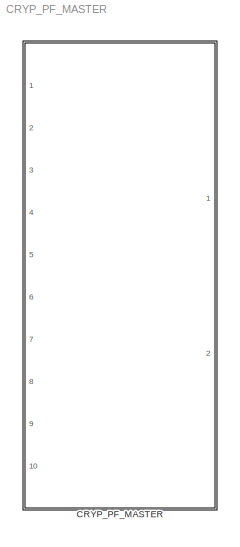
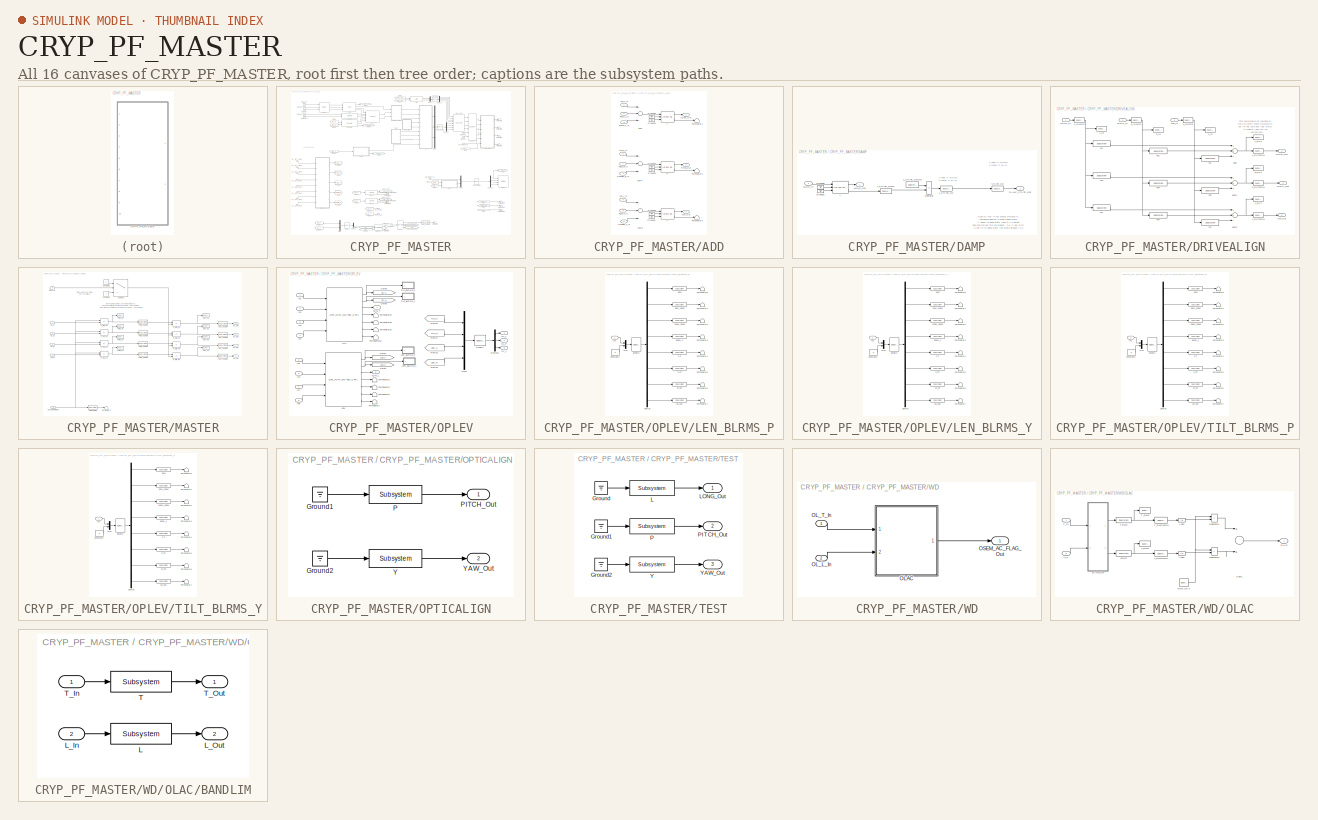
[diagram: thumbnail index - all 16 canvases of the model, root first then tree order]
MODEL CRYP_PF_MASTER
KIND library
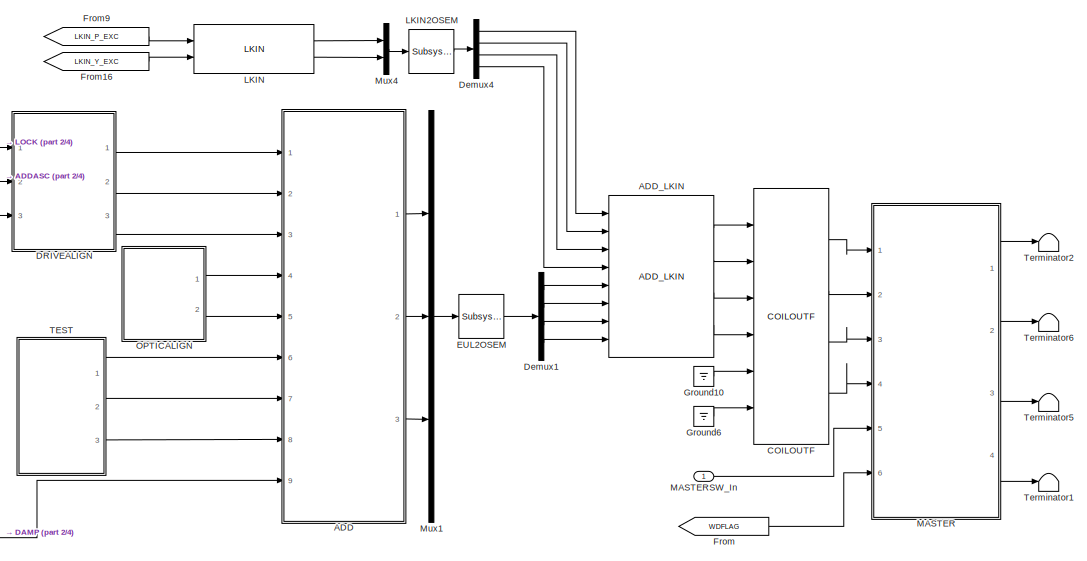
[diagram: CRYP_PF_MASTER - part 1/4, top right region]
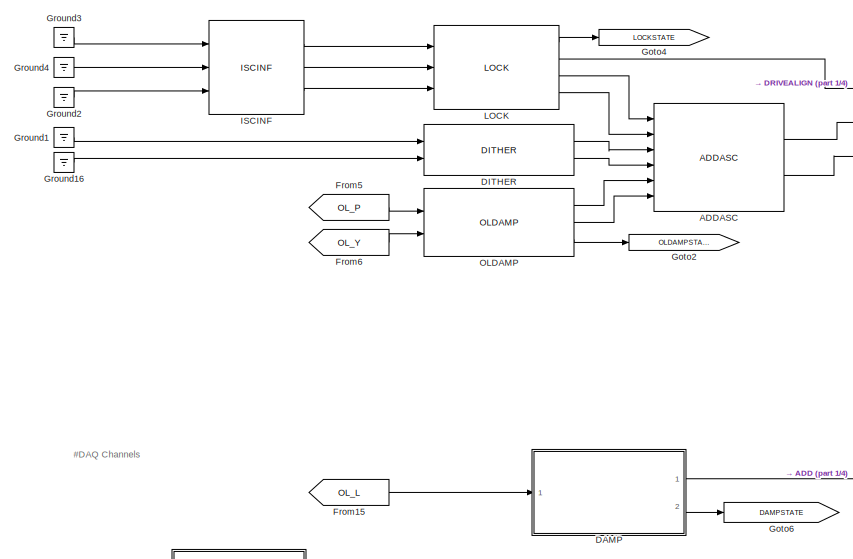
[diagram: CRYP_PF_MASTER - part 2/4, top left region]
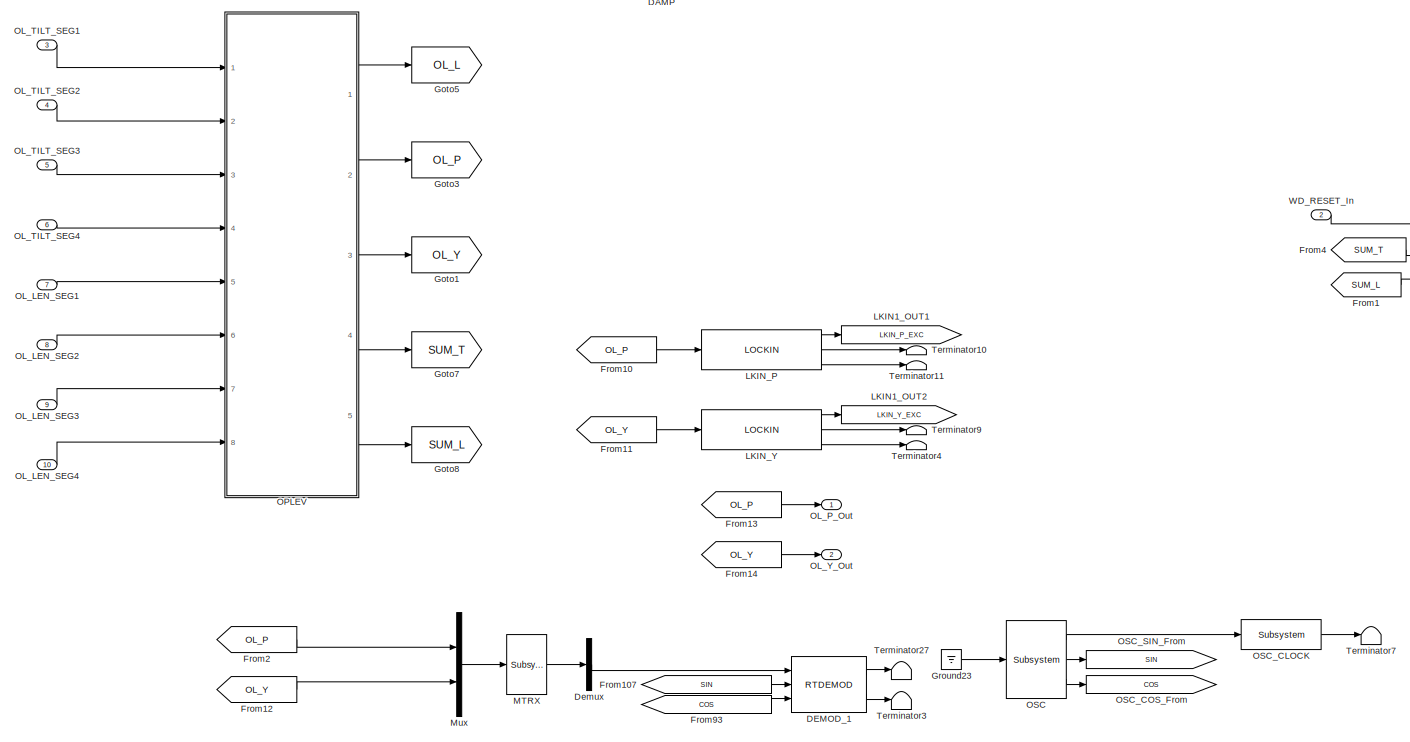
[diagram: CRYP_PF_MASTER - part 3/4, bottom center region]
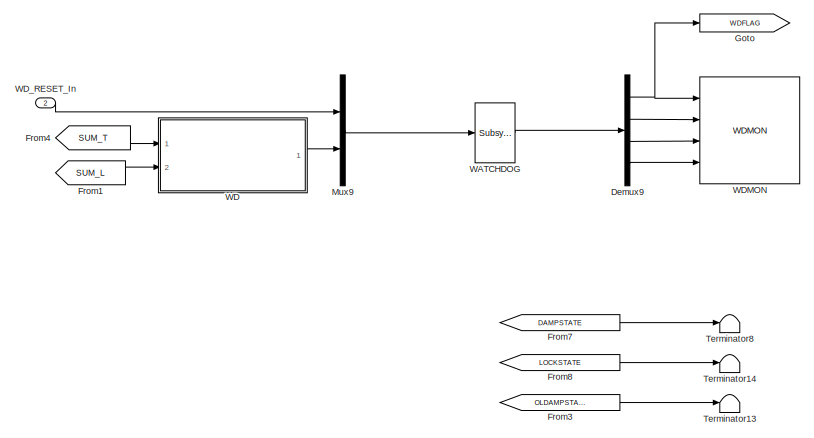
[diagram: CRYP_PF_MASTER - part 4/4, bottom right region]
BLOCK [SubSystem] CRYP_PF_MASTER
  Ports = [10, 2]
  RequestExecContextInheritance = off
  SID = 1
BLOCK [SubSystem] CRYP_PF_MASTER/ADD
  Ports = [9, 3]
  RequestExecContextInheritance = off
  SID = 19
BLOCK [Inport] CRYP_PF_MASTER/ADD/DAMP_L_In
  IconDisplay = Port number
  Port = 9
  SID = 28
BLOCK [Ground] CRYP_PF_MASTER/ADD/Ground1
  SID = 29
BLOCK [Ground] CRYP_PF_MASTER/ADD/Ground2
  SID = 30
BLOCK [Ground] CRYP_PF_MASTER/ADD/Ground3
  SID = 31
BLOCK [Ground] CRYP_PF_MASTER/ADD/Ground4
  SID = 32
BLOCK [Ground] CRYP_PF_MASTER/ADD/Ground5
  SID = 33
BLOCK [Ground] CRYP_PF_MASTER/ADD/Ground6
  SID = 34
BLOCK [Inport] CRYP_PF_MASTER/ADD/ISC_L_In
  IconDisplay = Port number
  SID = 20
BLOCK [Inport] CRYP_PF_MASTER/ADD/ISC_P_In
  IconDisplay = Port number
  Port = 2
  SID = 21
BLOCK [Inport] CRYP_PF_MASTER/ADD/ISC_Y_In
  IconDisplay = Port number
  Port = 3
  SID = 22
BLOCK [Reference] CRYP_PF_MASTER/ADD/L  REF=cdsFiltCtrl/IIR FM with control
  AttributesFormatString = %<Tag>
  Description = cdsFiltCntrl is the standard IIR filter module (exactly the same as cdsFilt) but with added control data output 'Ctrl'. Filter module digital signal output appears on the first output, which is called 'Val'. 'Ctrl' output has a bit pattern encoding the state of filter's on/off switches (FM1 through FM10). The bit values are:\n                                                                        ...<+4621ch>  <repeated x4 — deduplicated; at blocks: L, P, Y>
  Ports = [3, 2]
  SID = 35
  SourceBlock = cdsFiltCtrl/IIR FM with control
  SourceType = SubSystem
  Tag = cdsFiltCtrl
BLOCK [Outport] CRYP_PF_MASTER/ADD/LONG_Out
  IconDisplay = Port number
  SID = 44
BLOCK [Inport] CRYP_PF_MASTER/ADD/OFFSET_P_In
  IconDisplay = Port number
  Port = 4
  SID = 23
BLOCK [Inport] CRYP_PF_MASTER/ADD/OFFSET_Y_In
  IconDisplay = Port number
  Port = 5
  SID = 24
BLOCK [Reference] CRYP_PF_MASTER/ADD/P  REF=cdsFiltCtrl/IIR FM with control
  AttributesFormatString = %<Tag>
  Ports = [3, 2]
  SID = 36
  SourceBlock = cdsFiltCtrl/IIR FM with control
  SourceType = SubSystem
  Tag = cdsFiltCtrl
BLOCK [Outport] CRYP_PF_MASTER/ADD/PITCH_Out
  IconDisplay = Port number
  Port = 2
  SID = 45
BLOCK [Sum] CRYP_PF_MASTER/ADD/Sum
  InputSameDT = off
  Inputs = +++
  OutDataTypeStr = Inherit: Inherit via internal rule
  Ports = [3, 1]
  SID = 37
  SaturateOnIntegerOverflow = off
BLOCK [Sum] CRYP_PF_MASTER/ADD/Sum3
  InputSameDT = off
  Inputs = +++
  OutDataTypeStr = Inherit: Inherit via internal rule
  Ports = [3, 1]
  SID = 38
  SaturateOnIntegerOverflow = off
BLOCK [Sum] CRYP_PF_MASTER/ADD/Sum4
  InputSameDT = off
  Inputs = +++
  OutDataTypeStr = Inherit: Inherit via internal rule
  Ports = [3, 1]
  SID = 39
  SaturateOnIntegerOverflow = off
BLOCK [Inport] CRYP_PF_MASTER/ADD/TEST_L_In
  IconDisplay = Port number
  Port = 6
  SID = 25
BLOCK [Inport] CRYP_PF_MASTER/ADD/TEST_P_In
  IconDisplay = Port number
  Port = 7
  SID = 26
BLOCK [Inport] CRYP_PF_MASTER/ADD/TEST_Y_In
  IconDisplay = Port number
  Port = 8
  SID = 27
BLOCK [Terminator] CRYP_PF_MASTER/ADD/Terminator1
  SID = 40
BLOCK [Terminator] CRYP_PF_MASTER/ADD/Terminator2
  SID = 41
BLOCK [Terminator] CRYP_PF_MASTER/ADD/Terminator3
  SID = 42
BLOCK [Reference] CRYP_PF_MASTER/ADD/Y  REF=cdsFiltCtrl/IIR FM with control
  AttributesFormatString = %<Tag>
  Ports = [3, 2]
  SID = 43
  SourceBlock = cdsFiltCtrl/IIR FM with control
  SourceType = SubSystem
  Tag = cdsFiltCtrl
BLOCK [Outport] CRYP_PF_MASTER/ADD/YAW_Out
  IconDisplay = Port number
  Port = 3
  SID = 46
BLOCK [Reference] CRYP_PF_MASTER/ADDASC  REF=VIS_LIB/ADDASC
  Ports = [6, 2]
  SID = 47
  SourceBlock = VIS_LIB/ADDASC
  SourceType = SubSystem
BLOCK [Reference] CRYP_PF_MASTER/ADD_LKIN  REF=VIS_LIB/ADD_LKIN
  Ports = [8, 4]
  SID = 48
  SourceBlock = VIS_LIB/ADD_LKIN
  SourceType = SubSystem
BLOCK [Reference] CRYP_PF_MASTER/COILOUTF  REF=FOUROSEM_COILOUTF_MASTER/COILOUTF
  Ports = [6, 4]
  SID = 49
  SourceBlock = FOUROSEM_COILOUTF_MASTER/COILOUTF
  SourceType = SubSystem
BLOCK [SubSystem] CRYP_PF_MASTER/DAMP
  Ports = [1, 2]
  RequestExecContextInheritance = off
  SID = 50
BLOCK [Outport] CRYP_PF_MASTER/DAMP/DAMP_STATE_Out
  IconDisplay = Port number
  Port = 2
  SID = 61
BLOCK [Ground] CRYP_PF_MASTER/DAMP/Ground1
  SID = 52
BLOCK [Ground] CRYP_PF_MASTER/DAMP/Ground6
  SID = 53
BLOCK [Reference] CRYP_PF_MASTER/DAMP/L  REF=cdsFiltCtrl/IIR FM with control
  AttributesFormatString = %<Tag>
  Ports = [3, 2]
  SID = 54
  SourceBlock = cdsFiltCtrl/IIR FM with control
  SourceType = SubSystem
  Tag = cdsFiltCtrl
BLOCK [Inport] CRYP_PF_MASTER/DAMP/LONG_In
  IconDisplay = Port number
  SID = 51
BLOCK [Outport] CRYP_PF_MASTER/DAMP/LONG_Out
  IconDisplay = Port number
  SID = 60
BLOCK [Reference] CRYP_PF_MASTER/DAMP/L_STATE_GOOD  REF=cdsEpicsIn/Subsystem
  AttributesFormatString = %<Tag>
  Description = Purpose:                                                                              \nCreate an EPICS input channel connection to the FE realtime controls.                 \n                                                                                      \nOperation:                                                                            \nOutputs value from an EPICS ai record. Value is ...<+266ch>
  Ports = [0, 1]
  SID = 55
  SourceBlock = cdsEpicsIn/Subsystem
  SourceType = SubSystem
  Tag = cdsEpicsIn
BLOCK [Reference] CRYP_PF_MASTER/DAMP/L_STATE_NOW  REF=cdsEpicsOut/Subsystem
  AttributesFormatString = %<Tag>
  Description = Purpose:                                          \nOutput a FE signal to an EPICS channel.           \n                                                  \nOperation:                                        \nTakes input value and passes it to EPICS record.  \n                                                  \nUsage:                                            \nName the part with the desired EPICS...<+14ch>  <repeated x53 — deduplicated; at blocks: L_STATE_NOW, L_STATE_OK, STATE_OK, L_INMON, L_OUTMON, P_INMON, P_OUTMON, Y_INMON, Y_OUTMON, OUT_H1MON, OUT_H2MON, OUT_H3MON, OUT_H4MON, PWD_H1MON, PWD_H2MON, PWD_H3MON, +13 more>
  Ports = [1, 1]
  SID = 56
  SourceBlock = cdsEpicsOut/Subsystem
  SourceType = SubSystem
  Tag = cdsEpicsOutput
BLOCK [Reference] CRYP_PF_MASTER/DAMP/L_STATE_OK  REF=cdsEpicsOut/Subsystem
  AttributesFormatString = %<Tag>
  Ports = [1, 1]
  SID = 57
  SourceBlock = cdsEpicsOut/Subsystem
  SourceType = SubSystem
  Tag = cdsEpicsOutput
BLOCK [RelationalOperator] CRYP_PF_MASTER/DAMP/Operator
  InputSameDT = off
  Operator = ==
  OutDataTypeStr = boolean
  Ports = [2, 1]
  SID = 58
BLOCK [Reference] CRYP_PF_MASTER/DAMP/STATE_OK  REF=cdsEpicsOut/Subsystem
  AttributesFormatString = %<Tag>
  Ports = [1, 1]
  SID = 59
  SourceBlock = cdsEpicsOut/Subsystem
  SourceType = SubSystem
  Tag = cdsEpicsOutput
BLOCK [Reference] CRYP_PF_MASTER/DEMOD_1  REF=rtdemod/RTDEMOD
  Ports = [3, 2]
  SID = 332
  SourceBlock = rtdemod/RTDEMOD
  SourceType = SubSystem
  Tag = top_names
BLOCK [Reference] CRYP_PF_MASTER/DITHER  REF=VIS_LIB/DITHER
  Ports = [2, 2]
  SID = 66
  SourceBlock = VIS_LIB/DITHER
  SourceType = SubSystem
BLOCK [SubSystem] CRYP_PF_MASTER/DRIVEALIGN
  Ports = [3, 3]
  RequestExecContextInheritance = off
  SID = 67
BLOCK [Reference] CRYP_PF_MASTER/DRIVEALIGN/L2L  REF=cdsFilt/Subsystem
  AttributesFormatString = %<Tag>
  Description = Purpose:                                                                                                                                                                                                                                  \nStandard CDS IIR filter module.                                                                                                                                     ...<+1302ch>  <repeated x16 — deduplicated; at blocks: L2L, L2P, L2Y, P2L, P2P, P2Y, Y2L, Y2P, Y2Y, P, Y, L, T>
  Ports = [1, 1]
  SID = 71
  SourceBlock = cdsFilt/Subsystem
  SourceType = SubSystem
  Tag = cdsFilt
BLOCK [Reference] CRYP_PF_MASTER/DRIVEALIGN/L2P  REF=cdsFilt/Subsystem
  AttributesFormatString = %<Tag>
  Ports = [1, 1]
  SID = 72
  SourceBlock = cdsFilt/Subsystem
  SourceType = SubSystem
  Tag = cdsFilt
BLOCK [Reference] CRYP_PF_MASTER/DRIVEALIGN/L2Y  REF=cdsFilt/Subsystem
  AttributesFormatString = %<Tag>
  Ports = [1, 1]
  SID = 73
  SourceBlock = cdsFilt/Subsystem
  SourceType = SubSystem
  Tag = cdsFilt
BLOCK [Inport] CRYP_PF_MASTER/DRIVEALIGN/LONG_In
  IconDisplay = Port number
  SID = 68
BLOCK [Outport] CRYP_PF_MASTER/DRIVEALIGN/LONG_Out
  IconDisplay = Port number
  SID = 95
BLOCK [Reference] CRYP_PF_MASTER/DRIVEALIGN/L_IN  REF=cdsTP/Subsystem
  AttributesFormatString = %<Tag>
  Ports = [1]
  SID = 74
  SourceBlock = cdsTP/Subsystem
  SourceType = SubSystem
  Tag = Test Point
BLOCK [Reference] CRYP_PF_MASTER/DRIVEALIGN/L_INMON  REF=cdsEpicsOut/Subsystem
  AttributesFormatString = %<Tag>
  Ports = [1, 1]
  SID = 75
  SourceBlock = cdsEpicsOut/Subsystem
  SourceType = SubSystem
  Tag = cdsEpicsOutput
BLOCK [Reference] CRYP_PF_MASTER/DRIVEALIGN/L_OUT  REF=cdsTP/Subsystem
  AttributesFormatString = %<Tag>
  Ports = [1]
  SID = 76
  SourceBlock = cdsTP/Subsystem
  SourceType = SubSystem
  Tag = Test Point
BLOCK [Reference] CRYP_PF_MASTER/DRIVEALIGN/L_OUTMON  REF=cdsEpicsOut/Subsystem
  AttributesFormatString = %<Tag>
  Ports = [1, 1]
  SID = 77
  SourceBlock = cdsEpicsOut/Subsystem
  SourceType = SubSystem
  Tag = cdsEpicsOutput
BLOCK [Reference] CRYP_PF_MASTER/DRIVEALIGN/P2L  REF=cdsFilt/Subsystem
  AttributesFormatString = %<Tag>
  Ports = [1, 1]
  SID = 78
  SourceBlock = cdsFilt/Subsystem
  SourceType = SubSystem
  Tag = cdsFilt
BLOCK [Reference] CRYP_PF_MASTER/DRIVEALIGN/P2P  REF=cdsFilt/Subsystem
  AttributesFormatString = %<Tag>
  Ports = [1, 1]
  SID = 79
  SourceBlock = cdsFilt/Subsystem
  SourceType = SubSystem
  Tag = cdsFilt
BLOCK [Reference] CRYP_PF_MASTER/DRIVEALIGN/P2Y  REF=cdsFilt/Subsystem
  AttributesFormatString = %<Tag>
  Ports = [1, 1]
  SID = 80
  SourceBlock = cdsFilt/Subsystem
  SourceType = SubSystem
  Tag = cdsFilt
BLOCK [Inport] CRYP_PF_MASTER/DRIVEALIGN/PITCH_In
  IconDisplay = Port number
  Port = 2
  SID = 69
BLOCK [Outport] CRYP_PF_MASTER/DRIVEALIGN/PITCH_Out
  IconDisplay = Port number
  Port = 2
  SID = 96
BLOCK [Reference] CRYP_PF_MASTER/DRIVEALIGN/P_IN  REF=cdsTP/Subsystem
  AttributesFormatString = %<Tag>
  Ports = [1]
  SID = 81
  SourceBlock = cdsTP/Subsystem
  SourceType = SubSystem
  Tag = Test Point
BLOCK [Reference] CRYP_PF_MASTER/DRIVEALIGN/P_INMON  REF=cdsEpicsOut/Subsystem
  AttributesFormatString = %<Tag>
  Ports = [1, 1]
  SID = 82
  SourceBlock = cdsEpicsOut/Subsystem
  SourceType = SubSystem
  Tag = cdsEpicsOutput
BLOCK [Reference] CRYP_PF_MASTER/DRIVEALIGN/P_OUT  REF=cdsTP/Subsystem
  AttributesFormatString = %<Tag>
  Ports = [1]
  SID = 83
  SourceBlock = cdsTP/Subsystem
  SourceType = SubSystem
  Tag = Test Point
BLOCK [Reference] CRYP_PF_MASTER/DRIVEALIGN/P_OUTMON  REF=cdsEpicsOut/Subsystem
  AttributesFormatString = %<Tag>
  Ports = [1, 1]
  SID = 84
  SourceBlock = cdsEpicsOut/Subsystem
  SourceType = SubSystem
  Tag = cdsEpicsOutput
BLOCK [Sum] CRYP_PF_MASTER/DRIVEALIGN/Sum
  InputSameDT = off
  Inputs = +++
  OutDataTypeStr = Inherit: Inherit via internal rule
  Ports = [3, 1]
  SID = 85
  SaturateOnIntegerOverflow = off
BLOCK [Sum] CRYP_PF_MASTER/DRIVEALIGN/Sum1
  InputSameDT = off
  Inputs = +++
  OutDataTypeStr = Inherit: Inherit via internal rule
  Ports = [3, 1]
  SID = 86
  SaturateOnIntegerOverflow = off
BLOCK [Sum] CRYP_PF_MASTER/DRIVEALIGN/Sum2
  InputSameDT = off
  Inputs = +++
  OutDataTypeStr = Inherit: Inherit via internal rule
  Ports = [3, 1]
  SID = 87
  SaturateOnIntegerOverflow = off
BLOCK [Reference] CRYP_PF_MASTER/DRIVEALIGN/Y2L  REF=cdsFilt/Subsystem
  AttributesFormatString = %<Tag>
  Ports = [1, 1]
  SID = 88
  SourceBlock = cdsFilt/Subsystem
  SourceType = SubSystem
  Tag = cdsFilt
BLOCK [Reference] CRYP_PF_MASTER/DRIVEALIGN/Y2P  REF=cdsFilt/Subsystem
  AttributesFormatString = %<Tag>
  Ports = [1, 1]
  SID = 89
  SourceBlock = cdsFilt/Subsystem
  SourceType = SubSystem
  Tag = cdsFilt
BLOCK [Reference] CRYP_PF_MASTER/DRIVEALIGN/Y2Y  REF=cdsFilt/Subsystem
  AttributesFormatString = %<Tag>
  Ports = [1, 1]
  SID = 90
  SourceBlock = cdsFilt/Subsystem
  SourceType = SubSystem
  Tag = cdsFilt
BLOCK [Inport] CRYP_PF_MASTER/DRIVEALIGN/YAW_In
  IconDisplay = Port number
  Port = 3
  SID = 70
BLOCK [Outport] CRYP_PF_MASTER/DRIVEALIGN/YAW_Out
  IconDisplay = Port number
  Port = 3
  SID = 97
BLOCK [Reference] CRYP_PF_MASTER/DRIVEALIGN/Y_IN  REF=cdsTP/Subsystem
  AttributesFormatString = %<Tag>
  Ports = [1]
  SID = 91
  SourceBlock = cdsTP/Subsystem
  SourceType = SubSystem
  Tag = Test Point
BLOCK [Reference] CRYP_PF_MASTER/DRIVEALIGN/Y_INMON  REF=cdsEpicsOut/Subsystem
  AttributesFormatString = %<Tag>
  Ports = [1, 1]
  SID = 92
  SourceBlock = cdsEpicsOut/Subsystem
  SourceType = SubSystem
  Tag = cdsEpicsOutput
BLOCK [Reference] CRYP_PF_MASTER/DRIVEALIGN/Y_OUT  REF=cdsTP/Subsystem
  AttributesFormatString = %<Tag>
  Ports = [1]
  SID = 93
  SourceBlock = cdsTP/Subsystem
  SourceType = SubSystem
  Tag = Test Point
BLOCK [Reference] CRYP_PF_MASTER/DRIVEALIGN/Y_OUTMON  REF=cdsEpicsOut/Subsystem
  AttributesFormatString = %<Tag>
  Ports = [1, 1]
  SID = 94
  SourceBlock = cdsEpicsOut/Subsystem
  SourceType = SubSystem
  Tag = cdsEpicsOutput
BLOCK [Demux] CRYP_PF_MASTER/Demux
  DisplayOption = bar
  Outputs = 1
  Ports = [1, 1]
  SID = 333
BLOCK [Demux] CRYP_PF_MASTER/Demux1
  DisplayOption = bar
  Ports = [1, 4]
  SID = 100
BLOCK [Demux] CRYP_PF_MASTER/Demux4
  DisplayOption = bar
  Ports = [1, 4]
  SID = 101
BLOCK [Demux] CRYP_PF_MASTER/Demux9
  DisplayOption = bar
  Ports = [1, 4]
  SID = 102
BLOCK [Reference] CRYP_PF_MASTER/EUL2OSEM  REF=cdsMuxMatrix/Subsystem
  AttributesFormatString = %<Tag>
  Description = Any size matrix. Inputs and outputs must be connected using Mux and Demux parts.
  Ports = [1, 1]
  SID = 103
  SourceBlock = cdsMuxMatrix/Subsystem
  SourceType = SubSystem
  Tag = cdsMuxMatrix
BLOCK [From] CRYP_PF_MASTER/From
  CloseFcn = tagdialog Close
  GotoTag = WDFLAG
  SID = 104
BLOCK [From] CRYP_PF_MASTER/From1
  GotoTag = SUM_L
  SID = 448
BLOCK [From] CRYP_PF_MASTER/From10
  CloseFcn = tagdialog Close
  GotoTag = OL_P
  SID = 334
BLOCK [From] CRYP_PF_MASTER/From107
  GotoTag = SIN
  SID = 335
BLOCK [From] CRYP_PF_MASTER/From11
  CloseFcn = tagdialog Close
  GotoTag = OL_Y
  SID = 336
BLOCK [From] CRYP_PF_MASTER/From12
  CloseFcn = tagdialog Close
  GotoTag = OL_Y
  SID = 337
BLOCK [From] CRYP_PF_MASTER/From13
  CloseFcn = tagdialog Close
  GotoTag = OL_P
  SID = 338
BLOCK [From] CRYP_PF_MASTER/From14
  CloseFcn = tagdialog Close
  GotoTag = OL_Y
  SID = 339
BLOCK [From] CRYP_PF_MASTER/From15
  CloseFcn = tagdialog Close
  GotoTag = OL_L
  SID = 450
BLOCK [From] CRYP_PF_MASTER/From16
  CloseFcn = tagdialog Close
  GotoTag = LKIN_Y_EXC
  SID = 454
BLOCK [From] CRYP_PF_MASTER/From2
  CloseFcn = tagdialog Close
  GotoTag = OL_P
  SID = 340
BLOCK [From] CRYP_PF_MASTER/From3
  CloseFcn = tagdialog Close
  GotoTag = OLDAMPSTATE
  SID = 115
BLOCK [From] CRYP_PF_MASTER/From4
  GotoTag = SUM_T
  SID = 449
BLOCK [From] CRYP_PF_MASTER/From5
  CloseFcn = tagdialog Close
  GotoTag = OL_P
  SID = 451
BLOCK [From] CRYP_PF_MASTER/From6
  CloseFcn = tagdialog Close
  GotoTag = OL_Y
  SID = 452
BLOCK [From] CRYP_PF_MASTER/From7
  CloseFcn = tagdialog Close
  GotoTag = DAMPSTATE
  SID = 119
BLOCK [From] CRYP_PF_MASTER/From8
  CloseFcn = tagdialog Close
  GotoTag = LOCKSTATE
  SID = 120
BLOCK [From] CRYP_PF_MASTER/From9
  CloseFcn = tagdialog Close
  GotoTag = LKIN_P_EXC
  SID = 453
BLOCK [From] CRYP_PF_MASTER/From93
  GotoTag = COS
  SID = 341
BLOCK [Goto] CRYP_PF_MASTER/Goto
  GotoTag = WDFLAG
  SID = 123
BLOCK [Goto] CRYP_PF_MASTER/Goto1
  GotoTag = OL_Y
  SID = 343
BLOCK [Goto] CRYP_PF_MASTER/Goto2
  GotoTag = OLDAMPSTATE
  SID = 125
BLOCK [Goto] CRYP_PF_MASTER/Goto3
  GotoTag = OL_P
  SID = 342
BLOCK [Goto] CRYP_PF_MASTER/Goto4
  GotoTag = LOCKSTATE
  SID = 127
BLOCK [Goto] CRYP_PF_MASTER/Goto5
  GotoTag = OL_L
  SID = 344
BLOCK [Goto] CRYP_PF_MASTER/Goto6
  GotoTag = DAMPSTATE
  SID = 129
BLOCK [Goto] CRYP_PF_MASTER/Goto7
  GotoTag = SUM_T
  SID = 345
BLOCK [Goto] CRYP_PF_MASTER/Goto8
  GotoTag = SUM_L
  SID = 346
BLOCK [Ground] CRYP_PF_MASTER/Ground1
  SID = 298
BLOCK [Ground] CRYP_PF_MASTER/Ground10
  SID = 307
BLOCK [Ground] CRYP_PF_MASTER/Ground16
  SID = 297
BLOCK [Ground] CRYP_PF_MASTER/Ground2
  SID = 299
BLOCK [Ground] CRYP_PF_MASTER/Ground23
  SID = 347
BLOCK [Ground] CRYP_PF_MASTER/Ground3
  SID = 300
BLOCK [Ground] CRYP_PF_MASTER/Ground4
  SID = 301
BLOCK [Ground] CRYP_PF_MASTER/Ground6
  SID = 303
BLOCK [Reference] CRYP_PF_MASTER/ISCINF  REF=VIS_LIB/ISCINF
  Ports = [3, 3]
  SID = 133
  SourceBlock = VIS_LIB/ISCINF
  SourceType = SubSystem
BLOCK [Reference] CRYP_PF_MASTER/LKIN  REF=VIS_LIB/LKIN
  Ports = [2, 2]
  SID = 134
  SourceBlock = VIS_LIB/LKIN
  SourceType = SubSystem
BLOCK [Goto] CRYP_PF_MASTER/LKIN1_OUT1
  GotoTag = LKIN_P_EXC
  SID = 348
BLOCK [Goto] CRYP_PF_MASTER/LKIN1_OUT2
  GotoTag = LKIN_Y_EXC
  SID = 349
BLOCK [Reference] CRYP_PF_MASTER/LKIN2OSEM  REF=cdsMuxMatrix/Subsystem
  AttributesFormatString = %<Tag>
  Description = Any size matrix. Inputs and outputs must be connected using Mux and Demux parts.
  Ports = [1, 1]
  SID = 137
  SourceBlock = cdsMuxMatrix/Subsystem
  SourceType = SubSystem
  Tag = cdsMuxMatrix
BLOCK [Reference] CRYP_PF_MASTER/LKIN_P  REF=lockin/LOCKIN
  AttributesFormatString = %<Tag>
  Description = ADL=LOCKIN.adl
  Ports = [1, 3]
  SID = 350
  SourceBlock = lockin/LOCKIN
  SourceType = SubSystem
BLOCK [Reference] CRYP_PF_MASTER/LKIN_Y  REF=lockin/LOCKIN
  AttributesFormatString = %<Tag>
  Description = ADL=LOCKIN.adl
  Ports = [1, 3]
  SID = 351
  SourceBlock = lockin/LOCKIN
  SourceType = SubSystem
BLOCK [Reference] CRYP_PF_MASTER/LOCK  REF=VIS_LIB/LOCK
  Ports = [3, 4]
  SID = 140
  SourceBlock = VIS_LIB/LOCK
  SourceType = SubSystem
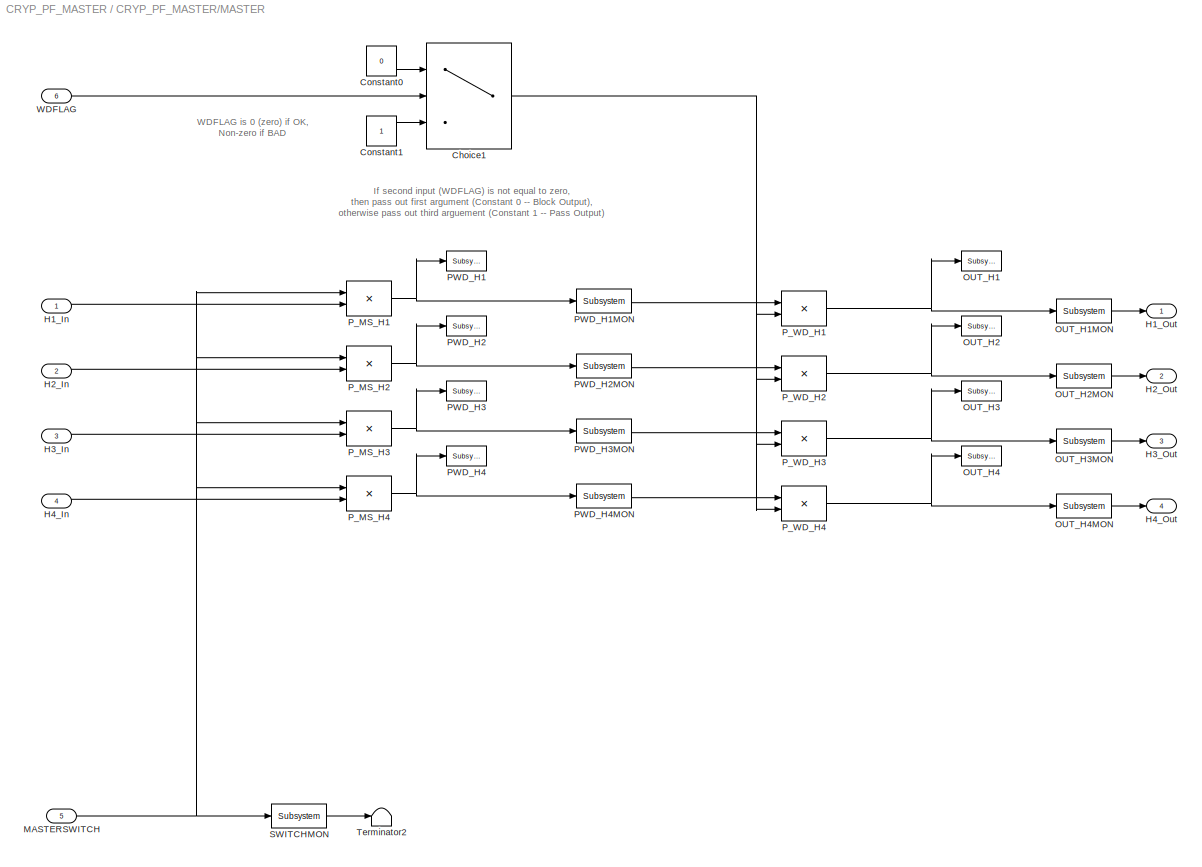
BLOCK [SubSystem] CRYP_PF_MASTER/MASTER
  AncestorBlock = VIS_LIB/MASTER
  Ports = [6, 4]
  RequestExecContextInheritance = off
  SID = 141
BLOCK [Switch] CRYP_PF_MASTER/MASTER/Choice1
  Criteria = u2 ~= 0
  InputSameDT = off
  SID = 141:430
  SaturateOnIntegerOverflow = off
  Threshold = 0.5
BLOCK [Constant] CRYP_PF_MASTER/MASTER/Constant0
  SID = 141:431
  Value = 0
BLOCK [Constant] CRYP_PF_MASTER/MASTER/Constant1
  SID = 141:432
BLOCK [Inport] CRYP_PF_MASTER/MASTER/H1_In
  IconDisplay = Port number
  SID = 141:424
BLOCK [Outport] CRYP_PF_MASTER/MASTER/H1_Out
  IconDisplay = Port number
  SID = 141:459
BLOCK [Inport] CRYP_PF_MASTER/MASTER/H2_In
  IconDisplay = Port number
  Port = 2
  SID = 141:425
BLOCK [Outport] CRYP_PF_MASTER/MASTER/H2_Out
  IconDisplay = Port number
  Port = 2
  SID = 141:460
BLOCK [Inport] CRYP_PF_MASTER/MASTER/H3_In
  IconDisplay = Port number
  Port = 3
  SID = 141:426
BLOCK [Outport] CRYP_PF_MASTER/MASTER/H3_Out
  IconDisplay = Port number
  Port = 3
  SID = 141:461
BLOCK [Inport] CRYP_PF_MASTER/MASTER/H4_In
  IconDisplay = Port number
  Port = 4
  SID = 141:427
BLOCK [Outport] CRYP_PF_MASTER/MASTER/H4_Out
  IconDisplay = Port number
  Port = 4
  SID = 141:462
BLOCK [Inport] CRYP_PF_MASTER/MASTER/MASTERSWITCH
  IconDisplay = Port number
  Port = 5
  SID = 141:428
BLOCK [Reference] CRYP_PF_MASTER/MASTER/OUT_H1  REF=cdsTP/Subsystem
  AttributesFormatString = %<Tag>
  Ports = [1]
  SID = 141:433
  SourceBlock = cdsTP/Subsystem
  SourceType = SubSystem
  Tag = Test Point
BLOCK [Reference] CRYP_PF_MASTER/MASTER/OUT_H1MON  REF=cdsEpicsOut/Subsystem
  AttributesFormatString = %<Tag>
  Ports = [1, 1]
  SID = 141:434
  SourceBlock = cdsEpicsOut/Subsystem
  SourceType = SubSystem
  Tag = cdsEpicsOutput
BLOCK [Reference] CRYP_PF_MASTER/MASTER/OUT_H2  REF=cdsTP/Subsystem
  AttributesFormatString = %<Tag>
  Ports = [1]
  SID = 141:435
  SourceBlock = cdsTP/Subsystem
  SourceType = SubSystem
  Tag = Test Point
BLOCK [Reference] CRYP_PF_MASTER/MASTER/OUT_H2MON  REF=cdsEpicsOut/Subsystem
  AttributesFormatString = %<Tag>
  Ports = [1, 1]
  SID = 141:436
  SourceBlock = cdsEpicsOut/Subsystem
  SourceType = SubSystem
  Tag = cdsEpicsOutput
BLOCK [Reference] CRYP_PF_MASTER/MASTER/OUT_H3  REF=cdsTP/Subsystem
  AttributesFormatString = %<Tag>
  Ports = [1]
  SID = 141:437
  SourceBlock = cdsTP/Subsystem
  SourceType = SubSystem
  Tag = Test Point
BLOCK [Reference] CRYP_PF_MASTER/MASTER/OUT_H3MON  REF=cdsEpicsOut/Subsystem
  AttributesFormatString = %<Tag>
  Ports = [1, 1]
  SID = 141:438
  SourceBlock = cdsEpicsOut/Subsystem
  SourceType = SubSystem
  Tag = cdsEpicsOutput
BLOCK [Reference] CRYP_PF_MASTER/MASTER/OUT_H4  REF=cdsTP/Subsystem
  AttributesFormatString = %<Tag>
  Ports = [1]
  SID = 141:439
  SourceBlock = cdsTP/Subsystem
  SourceType = SubSystem
  Tag = Test Point
BLOCK [Reference] CRYP_PF_MASTER/MASTER/OUT_H4MON  REF=cdsEpicsOut/Subsystem
  AttributesFormatString = %<Tag>
  Ports = [1, 1]
  SID = 141:440
  SourceBlock = cdsEpicsOut/Subsystem
  SourceType = SubSystem
  Tag = cdsEpicsOutput
BLOCK [Reference] CRYP_PF_MASTER/MASTER/PWD_H1  REF=cdsTP/Subsystem
  AttributesFormatString = %<Tag>
  Ports = [1]
  SID = 141:441
  SourceBlock = cdsTP/Subsystem
  SourceType = SubSystem
  Tag = Test Point
BLOCK [Reference] CRYP_PF_MASTER/MASTER/PWD_H1MON  REF=cdsEpicsOut/Subsystem
  AttributesFormatString = %<Tag>
  Ports = [1, 1]
  SID = 141:442
  SourceBlock = cdsEpicsOut/Subsystem
  SourceType = SubSystem
  Tag = cdsEpicsOutput
BLOCK [Reference] CRYP_PF_MASTER/MASTER/PWD_H2  REF=cdsTP/Subsystem
  AttributesFormatString = %<Tag>
  Ports = [1]
  SID = 141:443
  SourceBlock = cdsTP/Subsystem
  SourceType = SubSystem
  Tag = Test Point
BLOCK [Reference] CRYP_PF_MASTER/MASTER/PWD_H2MON  REF=cdsEpicsOut/Subsystem
  AttributesFormatString = %<Tag>
  Ports = [1, 1]
  SID = 141:444
  SourceBlock = cdsEpicsOut/Subsystem
  SourceType = SubSystem
  Tag = cdsEpicsOutput
BLOCK [Reference] CRYP_PF_MASTER/MASTER/PWD_H3  REF=cdsTP/Subsystem
  AttributesFormatString = %<Tag>
  Ports = [1]
  SID = 141:445
  SourceBlock = cdsTP/Subsystem
  SourceType = SubSystem
  Tag = Test Point
BLOCK [Reference] CRYP_PF_MASTER/MASTER/PWD_H3MON  REF=cdsEpicsOut/Subsystem
  AttributesFormatString = %<Tag>
  Ports = [1, 1]
  SID = 141:446
  SourceBlock = cdsEpicsOut/Subsystem
  SourceType = SubSystem
  Tag = cdsEpicsOutput
BLOCK [Reference] CRYP_PF_MASTER/MASTER/PWD_H4  REF=cdsTP/Subsystem
  AttributesFormatString = %<Tag>
  Ports = [1]
  SID = 141:447
  SourceBlock = cdsTP/Subsystem
  SourceType = SubSystem
  Tag = Test Point
BLOCK [Reference] CRYP_PF_MASTER/MASTER/PWD_H4MON  REF=cdsEpicsOut/Subsystem
  AttributesFormatString = %<Tag>
  Ports = [1, 1]
  SID = 141:448
  SourceBlock = cdsEpicsOut/Subsystem
  SourceType = SubSystem
  Tag = cdsEpicsOutput
BLOCK [Product] CRYP_PF_MASTER/MASTER/P_MS_H1
  InputSameDT = off
  OutDataTypeStr = Inherit: Inherit via internal rule
  Ports = [2, 1]
  SID = 141:449
  SaturateOnIntegerOverflow = off
BLOCK [Product] CRYP_PF_MASTER/MASTER/P_MS_H2
  InputSameDT = off
  OutDataTypeStr = Inherit: Inherit via internal rule
  Ports = [2, 1]
  SID = 141:450
  SaturateOnIntegerOverflow = off
BLOCK [Product] CRYP_PF_MASTER/MASTER/P_MS_H3
  InputSameDT = off
  OutDataTypeStr = Inherit: Inherit via internal rule
  Ports = [2, 1]
  SID = 141:451
  SaturateOnIntegerOverflow = off
BLOCK [Product] CRYP_PF_MASTER/MASTER/P_MS_H4
  InputSameDT = off
  OutDataTypeStr = Inherit: Inherit via internal rule
  Ports = [2, 1]
  SID = 141:452
  SaturateOnIntegerOverflow = off
BLOCK [Product] CRYP_PF_MASTER/MASTER/P_WD_H1
  InputSameDT = off
  OutDataTypeStr = Inherit: Inherit via internal rule
  Ports = [2, 1]
  SID = 141:453
  SaturateOnIntegerOverflow = off
BLOCK [Product] CRYP_PF_MASTER/MASTER/P_WD_H2
  InputSameDT = off
  OutDataTypeStr = Inherit: Inherit via internal rule
  Ports = [2, 1]
  SID = 141:454
  SaturateOnIntegerOverflow = off
BLOCK [Product] CRYP_PF_MASTER/MASTER/P_WD_H3
  InputSameDT = off
  OutDataTypeStr = Inherit: Inherit via internal rule
  Ports = [2, 1]
  SID = 141:455
  SaturateOnIntegerOverflow = off
BLOCK [Product] CRYP_PF_MASTER/MASTER/P_WD_H4
  InputSameDT = off
  OutDataTypeStr = Inherit: Inherit via internal rule
  Ports = [2, 1]
  SID = 141:456
  SaturateOnIntegerOverflow = off
BLOCK [Reference] CRYP_PF_MASTER/MASTER/SWITCHMON  REF=cdsEpicsOut/Subsystem
  AttributesFormatString = %<Tag>
  Ports = [1, 1]
  SID = 141:457
  SourceBlock = cdsEpicsOut/Subsystem
  SourceType = SubSystem
  Tag = cdsEpicsOutput
BLOCK [Terminator] CRYP_PF_MASTER/MASTER/Terminator2
  SID = 141:458
BLOCK [Inport] CRYP_PF_MASTER/MASTER/WDFLAG
  IconDisplay = Port number
  Port = 6
  SID = 141:429
BLOCK [Inport] CRYP_PF_MASTER/MASTERSW_In
  IconDisplay = Port number
  SID = 316
BLOCK [Reference] CRYP_PF_MASTER/MTRX  REF=cdsMuxMatrix/Subsystem
  AttributesFormatString = %<Tag>
  Description = Any size matrix. Inputs and outputs must be connected using Mux and Demux parts.
  Ports = [1, 1]
  SID = 352
  SourceBlock = cdsMuxMatrix/Subsystem
  SourceType = SubSystem
  Tag = cdsMuxMatrix
BLOCK [Mux] CRYP_PF_MASTER/Mux
  DisplayOption = bar
  Inputs = 2
  Ports = [2, 1]
  SID = 353
BLOCK [Mux] CRYP_PF_MASTER/Mux1
  DisplayOption = bar
  Inputs = 3
  Ports = [3, 1]
  SID = 144
BLOCK [Mux] CRYP_PF_MASTER/Mux4
  DisplayOption = bar
  Inputs = 2
  Ports = [2, 1]
  SID = 145
BLOCK [Mux] CRYP_PF_MASTER/Mux9
  DisplayOption = bar
  Inputs = 2
  Ports = [2, 1]
  SID = 146
BLOCK [Reference] CRYP_PF_MASTER/OLDAMP  REF=VIS_LIB/OLDAMP
  Ports = [2, 3]
  SID = 147
  SourceBlock = VIS_LIB/OLDAMP
  SourceType = SubSystem
BLOCK [Inport] CRYP_PF_MASTER/OL_LEN_SEG1
  IconDisplay = Port number
  Port = 7
  SID = 328
BLOCK [Inport] CRYP_PF_MASTER/OL_LEN_SEG2
  IconDisplay = Port number
  Port = 8
  SID = 329
BLOCK [Inport] CRYP_PF_MASTER/OL_LEN_SEG3
  IconDisplay = Port number
  Port = 9
  SID = 330
BLOCK [Inport] CRYP_PF_MASTER/OL_LEN_SEG4
  IconDisplay = Port number
  Port = 10
  SID = 331
BLOCK [Outport] CRYP_PF_MASTER/OL_P_Out
  IconDisplay = Port number
  SID = 446
BLOCK [Inport] CRYP_PF_MASTER/OL_TILT_SEG1
  IconDisplay = Port number
  Port = 3
  SID = 324
BLOCK [Inport] CRYP_PF_MASTER/OL_TILT_SEG2
  IconDisplay = Port number
  Port = 4
  SID = 325
BLOCK [Inport] CRYP_PF_MASTER/OL_TILT_SEG3
  IconDisplay = Port number
  Port = 5
  SID = 326
BLOCK [Inport] CRYP_PF_MASTER/OL_TILT_SEG4
  IconDisplay = Port number
  Port = 6
  SID = 327
BLOCK [Outport] CRYP_PF_MASTER/OL_Y_Out
  IconDisplay = Port number
  Port = 2
  SID = 447
BLOCK [SubSystem] CRYP_PF_MASTER/OPLEV
  Ports = [8, 5]
  RequestExecContextInheritance = off
  SID = 468
BLOCK [Demux] CRYP_PF_MASTER/OPLEV/Demux2
  DisplayOption = bar
  Outputs = 3
  Ports = [1, 3]
  SID = 477
BLOCK [From] CRYP_PF_MASTER/OPLEV/From16
  CloseFcn = tagdialog Close
  GotoTag = TILT_V
  SID = 478
BLOCK [From] CRYP_PF_MASTER/OPLEV/From17
  CloseFcn = tagdialog Close
  GotoTag = TILT_H
  SID = 479
BLOCK [From] CRYP_PF_MASTER/OPLEV/From18
  CloseFcn = tagdialog Close
  GotoTag = LEN_V
  SID = 480
BLOCK [From] CRYP_PF_MASTER/OPLEV/From19
  CloseFcn = tagdialog Close
  GotoTag = LEN_H
  SID = 481
BLOCK [Goto] CRYP_PF_MASTER/OPLEV/Goto1
  GotoTag = LEN_V
  SID = 482
BLOCK [Goto] CRYP_PF_MASTER/OPLEV/Goto3
  GotoTag = LEN_H
  SID = 483
BLOCK [Goto] CRYP_PF_MASTER/OPLEV/Goto5
  GotoTag = TILT_V
  SID = 484
BLOCK [Goto] CRYP_PF_MASTER/OPLEV/Goto6
  GotoTag = TILT_H
  SID = 485
BLOCK [Inport] CRYP_PF_MASTER/OPLEV/In1
  IconDisplay = Port number
  SID = 469
BLOCK [Inport] CRYP_PF_MASTER/OPLEV/In2
  IconDisplay = Port number
  Port = 2
  SID = 470
BLOCK [Inport] CRYP_PF_MASTER/OPLEV/In3
  IconDisplay = Port number
  Port = 3
  SID = 471
BLOCK [Inport] CRYP_PF_MASTER/OPLEV/In4
  IconDisplay = Port number
  Port = 4
  SID = 472
BLOCK [Inport] CRYP_PF_MASTER/OPLEV/In5
  IconDisplay = Port number
  Port = 5
  SID = 473
BLOCK [Inport] CRYP_PF_MASTER/OPLEV/In6
  IconDisplay = Port number
  Port = 6
  SID = 474
BLOCK [Inport] CRYP_PF_MASTER/OPLEV/In7
  IconDisplay = Port number
  Port = 7
  SID = 475
BLOCK [Inport] CRYP_PF_MASTER/OPLEV/In8
  IconDisplay = Port number
  Port = 8
  SID = 476
BLOCK [Reference] CRYP_PF_MASTER/OPLEV/LEN  REF=QPD/QPD_WITH_WHITEN_CTRL
  Ports = [4, 7]
  SID = 486
  SourceBlock = QPD/QPD_WITH_WHITEN_CTRL
  SourceType = SubSystem
BLOCK [SubSystem] CRYP_PF_MASTER/OPLEV/LEN_BLRMS_P
  AncestorBlock = TYPEBP_MASTER/TYPEBPMASTER/TM/OPLEV/TILT_BLRMS_P
  Ports = [1]
  RequestExecContextInheritance = off
  SID = 487
BLOCK [Reference] CRYP_PF_MASTER/OPLEV/LEN_BLRMS_P/100M_300M  REF=cdsEpicsOut/Subsystem
  AttributesFormatString = %<Tag>
  Ports = [1, 1]
  SID = 487:4274
  SourceBlock = cdsEpicsOut/Subsystem
  SourceType = SubSystem
  Tag = cdsEpicsOutput
BLOCK [Reference] CRYP_PF_MASTER/OPLEV/LEN_BLRMS_P/10_30  REF=cdsEpicsOut/Subsystem
  AttributesFormatString = %<Tag>
  Ports = [1, 1]
  SID = 487:4275
  SourceBlock = cdsEpicsOut/Subsystem
  SourceType = SubSystem
  Tag = cdsEpicsOutput
BLOCK [Reference] CRYP_PF_MASTER/OPLEV/LEN_BLRMS_P/1_3  REF=cdsEpicsOut/Subsystem
  AttributesFormatString = %<Tag>
  Ports = [1, 1]
  SID = 487:4276
  SourceBlock = cdsEpicsOut/Subsystem
  SourceType = SubSystem
  Tag = cdsEpicsOutput
BLOCK [Reference] CRYP_PF_MASTER/OPLEV/LEN_BLRMS_P/300M_1  REF=cdsEpicsOut/Subsystem
  AttributesFormatString = %<Tag>
  Ports = [1, 1]
  SID = 487:4277
  SourceBlock = cdsEpicsOut/Subsystem
  SourceType = SubSystem
  Tag = cdsEpicsOutput
BLOCK [Reference] CRYP_PF_MASTER/OPLEV/LEN_BLRMS_P/30M  REF=cdsEpicsOut/Subsystem
  AttributesFormatString = %<Tag>
  Ports = [1, 1]
  SID = 487:4278
  SourceBlock = cdsEpicsOut/Subsystem
  SourceType = SubSystem
  Tag = cdsEpicsOutput
BLOCK [Reference] CRYP_PF_MASTER/OPLEV/LEN_BLRMS_P/30M_100M  REF=cdsEpicsOut/Subsystem
  AttributesFormatString = %<Tag>
  Ports = [1, 1]
  SID = 487:4279
  SourceBlock = cdsEpicsOut/Subsystem
  SourceType = SubSystem
  Tag = cdsEpicsOutput
BLOCK [Reference] CRYP_PF_MASTER/OPLEV/LEN_BLRMS_P/30_100  REF=cdsEpicsOut/Subsystem
  AttributesFormatString = %<Tag>
  Ports = [1, 1]
  SID = 487:4280
  SourceBlock = cdsEpicsOut/Subsystem
  SourceType = SubSystem
  Tag = cdsEpicsOutput
BLOCK [Reference] CRYP_PF_MASTER/OPLEV/LEN_BLRMS_P/3_10  REF=cdsEpicsOut/Subsystem
  AttributesFormatString = %<Tag>
  Ports = [1, 1]
  SID = 487:4281
  SourceBlock = cdsEpicsOut/Subsystem
  SourceType = SubSystem
  Tag = cdsEpicsOutput
BLOCK [Reference] CRYP_PF_MASTER/OPLEV/LEN_BLRMS_P/BLRMS  REF=cdsFunctionCall/Subsystem
  AttributesFormatString = %<Tag>\\n%<Description>
  Description = inline BLRMS <path>
  Ports = [1, 1]
  SID = 487:4282
  SourceBlock = cdsFunctionCall/Subsystem
  SourceType = SubSystem
  Tag = cdsFunctionCall
BLOCK [Constant] CRYP_PF_MASTER/OPLEV/LEN_BLRMS_P/Constant2
  SID = 487:4283
  Value = 2
BLOCK [Demux] CRYP_PF_MASTER/OPLEV/LEN_BLRMS_P/Demux
  DisplayOption = bar
  Outputs = 8
  Ports = [1, 8]
  SID = 487:4284
BLOCK [Inport] CRYP_PF_MASTER/OPLEV/LEN_BLRMS_P/In1
  IconDisplay = Port number
  SID = 487:4273
BLOCK [Mux] CRYP_PF_MASTER/OPLEV/LEN_BLRMS_P/Mux
  DisplayOption = bar
  Inputs = 2
  Ports = [2, 1]
  SID = 487:4285
BLOCK [Terminator] CRYP_PF_MASTER/OPLEV/LEN_BLRMS_P/Terminator1
  SID = 487:4286
BLOCK [Terminator] CRYP_PF_MASTER/OPLEV/LEN_BLRMS_P/Terminator2
  SID = 487:4287
BLOCK [Terminator] CRYP_PF_MASTER/OPLEV/LEN_BLRMS_P/Terminator3
  SID = 487:4288
BLOCK [Terminator] CRYP_PF_MASTER/OPLEV/LEN_BLRMS_P/Terminator4
  SID = 487:4289
BLOCK [Terminator] CRYP_PF_MASTER/OPLEV/LEN_BLRMS_P/Terminator5
  SID = 487:4290
BLOCK [Terminator] CRYP_PF_MASTER/OPLEV/LEN_BLRMS_P/Terminator6
  SID = 487:4291
BLOCK [Terminator] CRYP_PF_MASTER/OPLEV/LEN_BLRMS_P/Terminator7
  SID = 487:4292
BLOCK [Terminator] CRYP_PF_MASTER/OPLEV/LEN_BLRMS_P/Terminator8
  SID = 487:4293
BLOCK [SubSystem] CRYP_PF_MASTER/OPLEV/LEN_BLRMS_Y
  AncestorBlock = TYPEBP_MASTER/TYPEBPMASTER/TM/OPLEV/TILT_BLRMS_P
  Ports = [1]
  RequestExecContextInheritance = off
  SID = 488
BLOCK [Reference] CRYP_PF_MASTER/OPLEV/LEN_BLRMS_Y/100M_300M  REF=cdsEpicsOut/Subsystem
  AttributesFormatString = %<Tag>
  Ports = [1, 1]
  SID = 488:4274
  SourceBlock = cdsEpicsOut/Subsystem
  SourceType = SubSystem
  Tag = cdsEpicsOutput
BLOCK [Reference] CRYP_PF_MASTER/OPLEV/LEN_BLRMS_Y/10_30  REF=cdsEpicsOut/Subsystem
  AttributesFormatString = %<Tag>
  Ports = [1, 1]
  SID = 488:4275
  SourceBlock = cdsEpicsOut/Subsystem
  SourceType = SubSystem
  Tag = cdsEpicsOutput
BLOCK [Reference] CRYP_PF_MASTER/OPLEV/LEN_BLRMS_Y/1_3  REF=cdsEpicsOut/Subsystem
  AttributesFormatString = %<Tag>
  Ports = [1, 1]
  SID = 488:4276
  SourceBlock = cdsEpicsOut/Subsystem
  SourceType = SubSystem
  Tag = cdsEpicsOutput
BLOCK [Reference] CRYP_PF_MASTER/OPLEV/LEN_BLRMS_Y/300M_1  REF=cdsEpicsOut/Subsystem
  AttributesFormatString = %<Tag>
  Ports = [1, 1]
  SID = 488:4277
  SourceBlock = cdsEpicsOut/Subsystem
  SourceType = SubSystem
  Tag = cdsEpicsOutput
BLOCK [Reference] CRYP_PF_MASTER/OPLEV/LEN_BLRMS_Y/30M  REF=cdsEpicsOut/Subsystem
  AttributesFormatString = %<Tag>
  Ports = [1, 1]
  SID = 488:4278
  SourceBlock = cdsEpicsOut/Subsystem
  SourceType = SubSystem
  Tag = cdsEpicsOutput
BLOCK [Reference] CRYP_PF_MASTER/OPLEV/LEN_BLRMS_Y/30M_100M  REF=cdsEpicsOut/Subsystem
  AttributesFormatString = %<Tag>
  Ports = [1, 1]
  SID = 488:4279
  SourceBlock = cdsEpicsOut/Subsystem
  SourceType = SubSystem
  Tag = cdsEpicsOutput
BLOCK [Reference] CRYP_PF_MASTER/OPLEV/LEN_BLRMS_Y/30_100  REF=cdsEpicsOut/Subsystem
  AttributesFormatString = %<Tag>
  Ports = [1, 1]
  SID = 488:4280
  SourceBlock = cdsEpicsOut/Subsystem
  SourceType = SubSystem
  Tag = cdsEpicsOutput
BLOCK [Reference] CRYP_PF_MASTER/OPLEV/LEN_BLRMS_Y/3_10  REF=cdsEpicsOut/Subsystem
  AttributesFormatString = %<Tag>
  Ports = [1, 1]
  SID = 488:4281
  SourceBlock = cdsEpicsOut/Subsystem
  SourceType = SubSystem
  Tag = cdsEpicsOutput
BLOCK [Reference] CRYP_PF_MASTER/OPLEV/LEN_BLRMS_Y/BLRMS  REF=cdsFunctionCall/Subsystem
  AttributesFormatString = %<Tag>\\n%<Description>
  Description = inline BLRMS <path>
  Ports = [1, 1]
  SID = 488:4282
  SourceBlock = cdsFunctionCall/Subsystem
  SourceType = SubSystem
  Tag = cdsFunctionCall
BLOCK [Constant] CRYP_PF_MASTER/OPLEV/LEN_BLRMS_Y/Constant2
  SID = 488:4283
  Value = 2
BLOCK [Demux] CRYP_PF_MASTER/OPLEV/LEN_BLRMS_Y/Demux
  DisplayOption = bar
  Outputs = 8
  Ports = [1, 8]
  SID = 488:4284
BLOCK [Inport] CRYP_PF_MASTER/OPLEV/LEN_BLRMS_Y/In1
  IconDisplay = Port number
  SID = 488:4273
BLOCK [Mux] CRYP_PF_MASTER/OPLEV/LEN_BLRMS_Y/Mux
  DisplayOption = bar
  Inputs = 2
  Ports = [2, 1]
  SID = 488:4285
BLOCK [Terminator] CRYP_PF_MASTER/OPLEV/LEN_BLRMS_Y/Terminator1
  SID = 488:4286
BLOCK [Terminator] CRYP_PF_MASTER/OPLEV/LEN_BLRMS_Y/Terminator2
  SID = 488:4287
BLOCK [Terminator] CRYP_PF_MASTER/OPLEV/LEN_BLRMS_Y/Terminator3
  SID = 488:4288
BLOCK [Terminator] CRYP_PF_MASTER/OPLEV/LEN_BLRMS_Y/Terminator4
  SID = 488:4289
BLOCK [Terminator] CRYP_PF_MASTER/OPLEV/LEN_BLRMS_Y/Terminator5
  SID = 488:4290
BLOCK [Terminator] CRYP_PF_MASTER/OPLEV/LEN_BLRMS_Y/Terminator6
  SID = 488:4291
BLOCK [Terminator] CRYP_PF_MASTER/OPLEV/LEN_BLRMS_Y/Terminator7
  SID = 488:4292
BLOCK [Terminator] CRYP_PF_MASTER/OPLEV/LEN_BLRMS_Y/Terminator8
  SID = 488:4293
BLOCK [Mux] CRYP_PF_MASTER/OPLEV/Mux2
  DisplayOption = bar
  Ports = [4, 1]
  SID = 489
BLOCK [Reference] CRYP_PF_MASTER/OPLEV/OL2EUL  REF=cdsMuxMatrix/Subsystem
  AttributesFormatString = %<Tag>
  Description = Any size matrix. Inputs and outputs must be connected using Mux and Demux parts.
  Ports = [1, 1]
  SID = 490
  SourceBlock = cdsMuxMatrix/Subsystem
  SourceType = SubSystem
  Tag = cdsMuxMatrix
BLOCK [Outport] CRYP_PF_MASTER/OPLEV/OL_L
  IconDisplay = Port number
  SID = 544
BLOCK [Outport] CRYP_PF_MASTER/OPLEV/OL_P
  IconDisplay = Port number
  Port = 2
  SID = 545
BLOCK [Outport] CRYP_PF_MASTER/OPLEV/OL_Y
  IconDisplay = Port number
  Port = 3
  SID = 546
BLOCK [Outport] CRYP_PF_MASTER/OPLEV/SUM_L
  IconDisplay = Port number
  Port = 5
  SID = 548
BLOCK [Outport] CRYP_PF_MASTER/OPLEV/SUM_T
  IconDisplay = Port number
  Port = 4
  SID = 547
BLOCK [Reference] CRYP_PF_MASTER/OPLEV/TILT  REF=QPD/QPD_WITH_WHITEN_CTRL
  Ports = [4, 7]
  SID = 491
  SourceBlock = QPD/QPD_WITH_WHITEN_CTRL
  SourceType = SubSystem
BLOCK [SubSystem] CRYP_PF_MASTER/OPLEV/TILT_BLRMS_P
  Ports = [1]
  RequestExecContextInheritance = off
  SID = 492
BLOCK [Reference] CRYP_PF_MASTER/OPLEV/TILT_BLRMS_P/100M_300M  REF=cdsEpicsOut/Subsystem
  AttributesFormatString = %<Tag>
  Ports = [1, 1]
  SID = 494
  SourceBlock = cdsEpicsOut/Subsystem
  SourceType = SubSystem
  Tag = cdsEpicsOutput
BLOCK [Reference] CRYP_PF_MASTER/OPLEV/TILT_BLRMS_P/10_30  REF=cdsEpicsOut/Subsystem
  AttributesFormatString = %<Tag>
  Ports = [1, 1]
  SID = 495
  SourceBlock = cdsEpicsOut/Subsystem
  SourceType = SubSystem
  Tag = cdsEpicsOutput
BLOCK [Reference] CRYP_PF_MASTER/OPLEV/TILT_BLRMS_P/1_3  REF=cdsEpicsOut/Subsystem
  AttributesFormatString = %<Tag>
  Ports = [1, 1]
  SID = 496
  SourceBlock = cdsEpicsOut/Subsystem
  SourceType = SubSystem
  Tag = cdsEpicsOutput
BLOCK [Reference] CRYP_PF_MASTER/OPLEV/TILT_BLRMS_P/300M_1  REF=cdsEpicsOut/Subsystem
  AttributesFormatString = %<Tag>
  Ports = [1, 1]
  SID = 497
  SourceBlock = cdsEpicsOut/Subsystem
  SourceType = SubSystem
  Tag = cdsEpicsOutput
BLOCK [Reference] CRYP_PF_MASTER/OPLEV/TILT_BLRMS_P/30M  REF=cdsEpicsOut/Subsystem
  AttributesFormatString = %<Tag>
  Ports = [1, 1]
  SID = 498
  SourceBlock = cdsEpicsOut/Subsystem
  SourceType = SubSystem
  Tag = cdsEpicsOutput
BLOCK [Reference] CRYP_PF_MASTER/OPLEV/TILT_BLRMS_P/30M_100M  REF=cdsEpicsOut/Subsystem
  AttributesFormatString = %<Tag>
  Ports = [1, 1]
  SID = 499
  SourceBlock = cdsEpicsOut/Subsystem
  SourceType = SubSystem
  Tag = cdsEpicsOutput
BLOCK [Reference] CRYP_PF_MASTER/OPLEV/TILT_BLRMS_P/30_100  REF=cdsEpicsOut/Subsystem
  AttributesFormatString = %<Tag>
  Ports = [1, 1]
  SID = 500
  SourceBlock = cdsEpicsOut/Subsystem
  SourceType = SubSystem
  Tag = cdsEpicsOutput
BLOCK [Reference] CRYP_PF_MASTER/OPLEV/TILT_BLRMS_P/3_10  REF=cdsEpicsOut/Subsystem
  AttributesFormatString = %<Tag>
  Ports = [1, 1]
  SID = 501
  SourceBlock = cdsEpicsOut/Subsystem
  SourceType = SubSystem
  Tag = cdsEpicsOutput
BLOCK [Reference] CRYP_PF_MASTER/OPLEV/TILT_BLRMS_P/BLRMS  REF=cdsFunctionCall/Subsystem
  AttributesFormatString = %<Tag>\\n%<Description>
  Description = inline BLRMS <path>
  Ports = [1, 1]
  SID = 502
  SourceBlock = cdsFunctionCall/Subsystem
  SourceType = SubSystem
  Tag = cdsFunctionCall
BLOCK [Constant] CRYP_PF_MASTER/OPLEV/TILT_BLRMS_P/Constant2
  SID = 503
  Value = 2
BLOCK [Demux] CRYP_PF_MASTER/OPLEV/TILT_BLRMS_P/Demux
  DisplayOption = bar
  Outputs = 8
  Ports = [1, 8]
  SID = 504
BLOCK [Inport] CRYP_PF_MASTER/OPLEV/TILT_BLRMS_P/In1
  IconDisplay = Port number
  SID = 493
BLOCK [Mux] CRYP_PF_MASTER/OPLEV/TILT_BLRMS_P/Mux
  DisplayOption = bar
  Inputs = 2
  Ports = [2, 1]
  SID = 505
BLOCK [Terminator] CRYP_PF_MASTER/OPLEV/TILT_BLRMS_P/Terminator1
  SID = 506
BLOCK [Terminator] CRYP_PF_MASTER/OPLEV/TILT_BLRMS_P/Terminator2
  SID = 507
BLOCK [Terminator] CRYP_PF_MASTER/OPLEV/TILT_BLRMS_P/Terminator3
  SID = 508
BLOCK [Terminator] CRYP_PF_MASTER/OPLEV/TILT_BLRMS_P/Terminator4
  SID = 509
BLOCK [Terminator] CRYP_PF_MASTER/OPLEV/TILT_BLRMS_P/Terminator5
  SID = 510
BLOCK [Terminator] CRYP_PF_MASTER/OPLEV/TILT_BLRMS_P/Terminator6
  SID = 511
BLOCK [Terminator] CRYP_PF_MASTER/OPLEV/TILT_BLRMS_P/Terminator7
  SID = 512
BLOCK [Terminator] CRYP_PF_MASTER/OPLEV/TILT_BLRMS_P/Terminator8
  SID = 513
BLOCK [SubSystem] CRYP_PF_MASTER/OPLEV/TILT_BLRMS_Y
  Ports = [1]
  RequestExecContextInheritance = off
  SID = 514
BLOCK [Reference] CRYP_PF_MASTER/OPLEV/TILT_BLRMS_Y/100M_300M  REF=cdsEpicsOut/Subsystem
  AttributesFormatString = %<Tag>
  Ports = [1, 1]
  SID = 516
  SourceBlock = cdsEpicsOut/Subsystem
  SourceType = SubSystem
  Tag = cdsEpicsOutput
BLOCK [Reference] CRYP_PF_MASTER/OPLEV/TILT_BLRMS_Y/10_30  REF=cdsEpicsOut/Subsystem
  AttributesFormatString = %<Tag>
  Ports = [1, 1]
  SID = 517
  SourceBlock = cdsEpicsOut/Subsystem
  SourceType = SubSystem
  Tag = cdsEpicsOutput
BLOCK [Reference] CRYP_PF_MASTER/OPLEV/TILT_BLRMS_Y/1_3  REF=cdsEpicsOut/Subsystem
  AttributesFormatString = %<Tag>
  Ports = [1, 1]
  SID = 518
  SourceBlock = cdsEpicsOut/Subsystem
  SourceType = SubSystem
  Tag = cdsEpicsOutput
BLOCK [Reference] CRYP_PF_MASTER/OPLEV/TILT_BLRMS_Y/300M_1  REF=cdsEpicsOut/Subsystem
  AttributesFormatString = %<Tag>
  Ports = [1, 1]
  SID = 519
  SourceBlock = cdsEpicsOut/Subsystem
  SourceType = SubSystem
  Tag = cdsEpicsOutput
BLOCK [Reference] CRYP_PF_MASTER/OPLEV/TILT_BLRMS_Y/30M  REF=cdsEpicsOut/Subsystem
  AttributesFormatString = %<Tag>
  Ports = [1, 1]
  SID = 520
  SourceBlock = cdsEpicsOut/Subsystem
  SourceType = SubSystem
  Tag = cdsEpicsOutput
BLOCK [Reference] CRYP_PF_MASTER/OPLEV/TILT_BLRMS_Y/30M_100M  REF=cdsEpicsOut/Subsystem
  AttributesFormatString = %<Tag>
  Ports = [1, 1]
  SID = 521
  SourceBlock = cdsEpicsOut/Subsystem
  SourceType = SubSystem
  Tag = cdsEpicsOutput
BLOCK [Reference] CRYP_PF_MASTER/OPLEV/TILT_BLRMS_Y/30_100  REF=cdsEpicsOut/Subsystem
  AttributesFormatString = %<Tag>
  Ports = [1, 1]
  SID = 522
  SourceBlock = cdsEpicsOut/Subsystem
  SourceType = SubSystem
  Tag = cdsEpicsOutput
BLOCK [Reference] CRYP_PF_MASTER/OPLEV/TILT_BLRMS_Y/3_10  REF=cdsEpicsOut/Subsystem
  AttributesFormatString = %<Tag>
  Ports = [1, 1]
  SID = 523
  SourceBlock = cdsEpicsOut/Subsystem
  SourceType = SubSystem
  Tag = cdsEpicsOutput
BLOCK [Reference] CRYP_PF_MASTER/OPLEV/TILT_BLRMS_Y/BLRMS  REF=cdsFunctionCall/Subsystem
  AttributesFormatString = %<Tag>\\n%<Description>
  Description = inline BLRMS <path>
  Ports = [1, 1]
  SID = 524
  SourceBlock = cdsFunctionCall/Subsystem
  SourceType = SubSystem
  Tag = cdsFunctionCall
BLOCK [Constant] CRYP_PF_MASTER/OPLEV/TILT_BLRMS_Y/Constant2
  SID = 525
  Value = 2
BLOCK [Demux] CRYP_PF_MASTER/OPLEV/TILT_BLRMS_Y/Demux
  DisplayOption = bar
  Outputs = 8
  Ports = [1, 8]
  SID = 526
BLOCK [Inport] CRYP_PF_MASTER/OPLEV/TILT_BLRMS_Y/In1
  IconDisplay = Port number
  SID = 515
BLOCK [Mux] CRYP_PF_MASTER/OPLEV/TILT_BLRMS_Y/Mux
  DisplayOption = bar
  Inputs = 2
  Ports = [2, 1]
  SID = 527
BLOCK [Terminator] CRYP_PF_MASTER/OPLEV/TILT_BLRMS_Y/Terminator1
  SID = 528
BLOCK [Terminator] CRYP_PF_MASTER/OPLEV/TILT_BLRMS_Y/Terminator2
  SID = 529
BLOCK [Terminator] CRYP_PF_MASTER/OPLEV/TILT_BLRMS_Y/Terminator3
  SID = 530
BLOCK [Terminator] CRYP_PF_MASTER/OPLEV/TILT_BLRMS_Y/Terminator4
  SID = 531
BLOCK [Terminator] CRYP_PF_MASTER/OPLEV/TILT_BLRMS_Y/Terminator5
  SID = 532
BLOCK [Terminator] CRYP_PF_MASTER/OPLEV/TILT_BLRMS_Y/Terminator6
  SID = 533
BLOCK [Terminator] CRYP_PF_MASTER/OPLEV/TILT_BLRMS_Y/Terminator7
  SID = 534
BLOCK [Terminator] CRYP_PF_MASTER/OPLEV/TILT_BLRMS_Y/Terminator8
  SID = 535
BLOCK [Terminator] CRYP_PF_MASTER/OPLEV/Terminator5
  SID = 536
BLOCK [Terminator] CRYP_PF_MASTER/OPLEV/Terminator50
  SID = 537
BLOCK [Terminator] CRYP_PF_MASTER/OPLEV/Terminator51
  SID = 538
BLOCK [Terminator] CRYP_PF_MASTER/OPLEV/Terminator52
  SID = 539
BLOCK [Terminator] CRYP_PF_MASTER/OPLEV/Terminator54
  SID = 540
BLOCK [Terminator] CRYP_PF_MASTER/OPLEV/Terminator6
  SID = 541
BLOCK [Terminator] CRYP_PF_MASTER/OPLEV/Terminator7
  SID = 542
BLOCK [Terminator] CRYP_PF_MASTER/OPLEV/Terminator8
  SID = 543
BLOCK [SubSystem] CRYP_PF_MASTER/OPTICALIGN
  Ports = [0, 2]
  RequestExecContextInheritance = off
  SID = 229
BLOCK [Ground] CRYP_PF_MASTER/OPTICALIGN/Ground1
  SID = 230
BLOCK [Ground] CRYP_PF_MASTER/OPTICALIGN/Ground2
  SID = 231
BLOCK [Reference] CRYP_PF_MASTER/OPTICALIGN/P  REF=cdsFilt/Subsystem
  AttributesFormatString = %<Tag>
  Ports = [1, 1]
  SID = 232
  SourceBlock = cdsFilt/Subsystem
  SourceType = SubSystem
  Tag = cdsFilt
BLOCK [Outport] CRYP_PF_MASTER/OPTICALIGN/PITCH_Out
  IconDisplay = Port number
  SID = 234
BLOCK [Reference] CRYP_PF_MASTER/OPTICALIGN/Y  REF=cdsFilt/Subsystem
  AttributesFormatString = %<Tag>
  Ports = [1, 1]
  SID = 233
  SourceBlock = cdsFilt/Subsystem
  SourceType = SubSystem
  Tag = cdsFilt
BLOCK [Outport] CRYP_PF_MASTER/OPTICALIGN/YAW_Out
  IconDisplay = Port number
  Port = 2
  SID = 235
BLOCK [Reference] CRYP_PF_MASTER/OSC  REF=cdsOsc/Subsystem
  AttributesFormatString = %<Tag>
  Description = Oscillator
  Ports = [1, 3]
  SID = 435
  SourceBlock = cdsOsc/Subsystem
  SourceType = SubSystem
  Tag = cdsOsc
BLOCK [Reference] CRYP_PF_MASTER/OSC_CLOCK  REF=cdsEpicsOut/Subsystem
  AttributesFormatString = %<Tag>
  Ports = [1, 1]
  SID = 436
  SourceBlock = cdsEpicsOut/Subsystem
  SourceType = SubSystem
  Tag = cdsEpicsOutput
BLOCK [Goto] CRYP_PF_MASTER/OSC_COS_From
  GotoTag = COS
  SID = 437
BLOCK [Goto] CRYP_PF_MASTER/OSC_SIN_From
  GotoTag = SIN
  SID = 438
BLOCK [SubSystem] CRYP_PF_MASTER/TEST
  Ports = [0, 3]
  RequestExecContextInheritance = off
  SID = 240
BLOCK [Ground] CRYP_PF_MASTER/TEST/Ground
  SID = 241
BLOCK [Ground] CRYP_PF_MASTER/TEST/Ground1
  SID = 242
BLOCK [Ground] CRYP_PF_MASTER/TEST/Ground2
  SID = 243
BLOCK [Reference] CRYP_PF_MASTER/TEST/L  REF=cdsFilt/Subsystem
  AttributesFormatString = %<Tag>
  Ports = [1, 1]
  SID = 244
  SourceBlock = cdsFilt/Subsystem
  SourceType = SubSystem
  Tag = cdsFilt
BLOCK [Outport] CRYP_PF_MASTER/TEST/LONG_Out
  IconDisplay = Port number
  SID = 247
BLOCK [Reference] CRYP_PF_MASTER/TEST/P  REF=cdsFilt/Subsystem
  AttributesFormatString = %<Tag>
  Ports = [1, 1]
  SID = 245
  SourceBlock = cdsFilt/Subsystem
  SourceType = SubSystem
  Tag = cdsFilt
BLOCK [Outport] CRYP_PF_MASTER/TEST/PITCH_Out
  IconDisplay = Port number
  Port = 2
  SID = 248
BLOCK [Reference] CRYP_PF_MASTER/TEST/Y  REF=cdsFilt/Subsystem
  AttributesFormatString = %<Tag>
  Ports = [1, 1]
  SID = 246
  SourceBlock = cdsFilt/Subsystem
  SourceType = SubSystem
  Tag = cdsFilt
BLOCK [Outport] CRYP_PF_MASTER/TEST/YAW_Out
  IconDisplay = Port number
  Port = 3
  SID = 249
BLOCK [Terminator] CRYP_PF_MASTER/Terminator1
  SID = 308
BLOCK [Terminator] CRYP_PF_MASTER/Terminator10
  SID = 440
BLOCK [Terminator] CRYP_PF_MASTER/Terminator11
  SID = 445
BLOCK [Terminator] CRYP_PF_MASTER/Terminator13
  SID = 314
BLOCK [Terminator] CRYP_PF_MASTER/Terminator14
  SID = 315
BLOCK [Terminator] CRYP_PF_MASTER/Terminator2
  SID = 309
BLOCK [Terminator] CRYP_PF_MASTER/Terminator27
  SID = 442
BLOCK [Terminator] CRYP_PF_MASTER/Terminator3
  SID = 439
BLOCK [Terminator] CRYP_PF_MASTER/Terminator4
  SID = 441
BLOCK [Terminator] CRYP_PF_MASTER/Terminator5
  SID = 310
BLOCK [Terminator] CRYP_PF_MASTER/Terminator6
  SID = 311
BLOCK [Terminator] CRYP_PF_MASTER/Terminator7
  SID = 443
BLOCK [Terminator] CRYP_PF_MASTER/Terminator8
  SID = 313
BLOCK [Terminator] CRYP_PF_MASTER/Terminator9
  SID = 444
BLOCK [Reference] CRYP_PF_MASTER/WATCHDOG  REF=cdsFunctionCall/Subsystem
  AttributesFormatString = %<Tag>\\n%<Description>
  Description = inline OSEMWATCHDOG <path>
  Ports = [1, 1]
  SID = 257
  SourceBlock = cdsFunctionCall/Subsystem
  SourceType = SubSystem
  Tag = cdsFunctionCall
BLOCK [SubSystem] CRYP_PF_MASTER/WD
  Ports = [2, 1]
  RequestExecContextInheritance = off
  SID = 258
BLOCK [SubSystem] CRYP_PF_MASTER/WD/OLAC
  Ports = [2, 1]
  RequestExecContextInheritance = off
  SID = 261
BLOCK [Abs] CRYP_PF_MASTER/WD/OLAC/Abs1
  SID = 264
  SaturateOnIntegerOverflow = off
BLOCK [Abs] CRYP_PF_MASTER/WD/OLAC/Abs2
  SID = 265
  SaturateOnIntegerOverflow = off
BLOCK [SubSystem] CRYP_PF_MASTER/WD/OLAC/BANDLIM
  Ports = [2, 2]
  RequestExecContextInheritance = off
  SID = 266
BLOCK [Reference] CRYP_PF_MASTER/WD/OLAC/BANDLIM/L  REF=cdsFilt/Subsystem
  AttributesFormatString = %<Tag>
  Ports = [1, 1]
  SID = 269
  SourceBlock = cdsFilt/Subsystem
  SourceType = SubSystem
  Tag = cdsFilt
BLOCK [Inport] CRYP_PF_MASTER/WD/OLAC/BANDLIM/L_In
  IconDisplay = Port number
  Port = 2
  SID = 268
BLOCK [Outport] CRYP_PF_MASTER/WD/OLAC/BANDLIM/L_Out
  IconDisplay = Port number
  Port = 2
  SID = 272
BLOCK [Reference] CRYP_PF_MASTER/WD/OLAC/BANDLIM/T  REF=cdsFilt/Subsystem
  AttributesFormatString = %<Tag>
  Ports = [1, 1]
  SID = 270
  SourceBlock = cdsFilt/Subsystem
  SourceType = SubSystem
  Tag = cdsFilt
BLOCK [Inport] CRYP_PF_MASTER/WD/OLAC/BANDLIM/T_In
  IconDisplay = Port number
  SID = 267
BLOCK [Outport] CRYP_PF_MASTER/WD/OLAC/BANDLIM/T_Out
  IconDisplay = Port number
  SID = 271
BLOCK [Outport] CRYP_PF_MASTER/WD/OLAC/FLAG
  IconDisplay = Port number
  SID = 283
BLOCK [Reference] CRYP_PF_MASTER/WD/OLAC/LRMS  REF=cdsRms/Subsystem
  AttributesFormatString = %<Tag>
  Description = Purpose:                                   \nCalculate an RMS based on the input signal.
  Ports = [1, 1]
  SID = 273
  SourceBlock = cdsRms/Subsystem
  SourceType = SubSystem
  Tag = cdsRms
BLOCK [Inport] CRYP_PF_MASTER/WD/OLAC/L_In
  IconDisplay = Port number
  Port = 2
  SID = 263
BLOCK [Reference] CRYP_PF_MASTER/WD/OLAC/L_RMS  REF=cdsTP/Subsystem
  AttributesFormatString = %<Tag>
  Ports = [1]
  SID = 274
  SourceBlock = cdsTP/Subsystem
  SourceType = SubSystem
  Tag = Test Point
BLOCK [Reference] CRYP_PF_MASTER/WD/OLAC/L_RMSMON  REF=cdsEpicsOut/Subsystem
  AttributesFormatString = %<Tag>
  Ports = [1, 1]
  SID = 275
  SourceBlock = cdsEpicsOut/Subsystem
  SourceType = SubSystem
  Tag = cdsEpicsOutput
BLOCK [RelationalOperator] CRYP_PF_MASTER/WD/OLAC/Operator1
  InputSameDT = off
  Operator = >
  OutDataTypeStr = boolean
  Ports = [2, 1]
  SID = 276
BLOCK [RelationalOperator] CRYP_PF_MASTER/WD/OLAC/Operator2
  InputSameDT = off
  Operator = >
  OutDataTypeStr = boolean
  Ports = [2, 1]
  SID = 277
BLOCK [Reference] CRYP_PF_MASTER/WD/OLAC/RMS_MAX  REF=cdsEpicsIn/Subsystem
  AttributesFormatString = %<Tag>
  Description = Purpose:                                                                              \nCreate an EPICS input channel connection to the FE realtime controls.                 \n                                                                                      \nOperation:                                                                            \nOutputs value from an EPICS ai record. Value is ...<+266ch>
  Ports = [0, 1]
  SID = 278
  SourceBlock = cdsEpicsIn/Subsystem
  SourceType = SubSystem
  Tag = cdsEpicsIn
BLOCK [Sum] CRYP_PF_MASTER/WD/OLAC/Sum1
  InputSameDT = off
  OutDataTypeStr = Inherit: Inherit via internal rule
  Ports = [2, 1]
  SID = 279
  SaturateOnIntegerOverflow = off
BLOCK [Reference] CRYP_PF_MASTER/WD/OLAC/TRMS  REF=cdsRms/Subsystem
  AttributesFormatString = %<Tag>
  Description = Purpose:                                   \nCalculate an RMS based on the input signal.
  Ports = [1, 1]
  SID = 280
  SourceBlock = cdsRms/Subsystem
  SourceType = SubSystem
  Tag = cdsRms
BLOCK [Inport] CRYP_PF_MASTER/WD/OLAC/T_In
  IconDisplay = Port number
  SID = 262
BLOCK [Reference] CRYP_PF_MASTER/WD/OLAC/T_RMS  REF=cdsTP/Subsystem
  AttributesFormatString = %<Tag>
  Ports = [1]
  SID = 281
  SourceBlock = cdsTP/Subsystem
  SourceType = SubSystem
  Tag = Test Point
BLOCK [Reference] CRYP_PF_MASTER/WD/OLAC/T_RMSMON  REF=cdsEpicsOut/Subsystem
  AttributesFormatString = %<Tag>
  Ports = [1, 1]
  SID = 282
  SourceBlock = cdsEpicsOut/Subsystem
  SourceType = SubSystem
  Tag = cdsEpicsOutput
BLOCK [Inport] CRYP_PF_MASTER/WD/OL_L_In
  IconDisplay = Port number
  Port = 2
  SID = 260
BLOCK [Inport] CRYP_PF_MASTER/WD/OL_T_In
  IconDisplay = Port number
  SID = 259
BLOCK [Outport] CRYP_PF_MASTER/WD/OSEM_AC_FLAG_Out
  IconDisplay = Port number
  SID = 284
BLOCK [Reference] CRYP_PF_MASTER/WDMON  REF=VIS_LIB/WDMON
  Ports = [4]
  SID = 285
  SourceBlock = VIS_LIB/WDMON
  SourceType = SubSystem
BLOCK [Inport] CRYP_PF_MASTER/WD_RESET_In
  IconDisplay = Port number
  Port = 2
  SID = 16
ANNOTATION CRYP_PF_MASTER: #DAQ Channels\n
ANNOTATION CRYP_PF_MASTER/DAMP: 1 (one) if GOOD\n0 (zero) if BAD
ANNOTATION CRYP_PF_MASTER/DAMP: Each DAMP filter output bitword is \ncompared against a known good state.\nIf equal to good state, then a 1 is output \nand multiplied into the product. So, if any DOF\nis not in its good state, the whole product is 0.
ANNOTATION CRYP_PF_MASTER/DRIVEALIGN: This could/should be replaced by\nthe CDS_PART cdsFiltMuxMatrix,\nbut I'm not sure how that works \nin MEDM land just yet \n-- JSK Feb 2011
ANNOTATION CRYP_PF_MASTER/MASTER: If second input (WDFLAG) is not equal to zero, \nthen pass out first argument (Constant 0 -- Block Output), \notherwise pass out third arguement (Constant 1 -- Pass Output)
ANNOTATION CRYP_PF_MASTER/MASTER: WDFLAG is 0 (zero) if OK,\nNon-zero if BAD
LINE CRYP_PF_MASTER/ADD/DAMP_L_In:1 -> CRYP_PF_MASTER/ADD/Sum:3
LINE CRYP_PF_MASTER/ADD/Ground1:1 -> CRYP_PF_MASTER/ADD/L:3
LINE CRYP_PF_MASTER/ADD/Ground2:1 -> CRYP_PF_MASTER/ADD/P:3
LINE CRYP_PF_MASTER/ADD/Ground3:1 -> CRYP_PF_MASTER/ADD/P:2
LINE CRYP_PF_MASTER/ADD/Ground4:1 -> CRYP_PF_MASTER/ADD/Y:3
LINE CRYP_PF_MASTER/ADD/Ground5:1 -> CRYP_PF_MASTER/ADD/Y:2
LINE CRYP_PF_MASTER/ADD/Ground6:1 -> CRYP_PF_MASTER/ADD/L:2
LINE CRYP_PF_MASTER/ADD/ISC_L_In:1 -> CRYP_PF_MASTER/ADD/Sum:1
LINE CRYP_PF_MASTER/ADD/ISC_P_In:1 -> CRYP_PF_MASTER/ADD/Sum4:1
LINE CRYP_PF_MASTER/ADD/ISC_Y_In:1 -> CRYP_PF_MASTER/ADD/Sum3:1
LINE CRYP_PF_MASTER/ADD/L:1 -> CRYP_PF_MASTER/ADD/LONG_Out:1
LINE CRYP_PF_MASTER/ADD/L:2 -> CRYP_PF_MASTER/ADD/Terminator1:1
LINE CRYP_PF_MASTER/ADD/OFFSET_P_In:1 -> CRYP_PF_MASTER/ADD/Sum4:3
LINE CRYP_PF_MASTER/ADD/OFFSET_Y_In:1 -> CRYP_PF_MASTER/ADD/Sum3:3
LINE CRYP_PF_MASTER/ADD/P:1 -> CRYP_PF_MASTER/ADD/PITCH_Out:1
LINE CRYP_PF_MASTER/ADD/P:2 -> CRYP_PF_MASTER/ADD/Terminator2:1
LINE CRYP_PF_MASTER/ADD/Sum3:1 -> CRYP_PF_MASTER/ADD/Y:1
LINE CRYP_PF_MASTER/ADD/Sum4:1 -> CRYP_PF_MASTER/ADD/P:1
LINE CRYP_PF_MASTER/ADD/Sum:1 -> CRYP_PF_MASTER/ADD/L:1
LINE CRYP_PF_MASTER/ADD/TEST_L_In:1 -> CRYP_PF_MASTER/ADD/Sum:2
LINE CRYP_PF_MASTER/ADD/TEST_P_In:1 -> CRYP_PF_MASTER/ADD/Sum4:2
LINE CRYP_PF_MASTER/ADD/TEST_Y_In:1 -> CRYP_PF_MASTER/ADD/Sum3:2
LINE CRYP_PF_MASTER/ADD/Y:1 -> CRYP_PF_MASTER/ADD/YAW_Out:1
LINE CRYP_PF_MASTER/ADD/Y:2 -> CRYP_PF_MASTER/ADD/Terminator3:1
LINE CRYP_PF_MASTER/ADD:1 -> CRYP_PF_MASTER/Mux1:1
LINE CRYP_PF_MASTER/ADD:2 -> CRYP_PF_MASTER/Mux1:2
LINE CRYP_PF_MASTER/ADD:3 -> CRYP_PF_MASTER/Mux1:3
LINE CRYP_PF_MASTER/ADDASC:1 -> CRYP_PF_MASTER/DRIVEALIGN:2
LINE CRYP_PF_MASTER/ADDASC:2 -> CRYP_PF_MASTER/DRIVEALIGN:3
LINE CRYP_PF_MASTER/ADD_LKIN:1 -> CRYP_PF_MASTER/COILOUTF:1
LINE CRYP_PF_MASTER/ADD_LKIN:2 -> CRYP_PF_MASTER/COILOUTF:2
LINE CRYP_PF_MASTER/ADD_LKIN:3 -> CRYP_PF_MASTER/COILOUTF:3
LINE CRYP_PF_MASTER/ADD_LKIN:4 -> CRYP_PF_MASTER/COILOUTF:4
LINE CRYP_PF_MASTER/COILOUTF:1 -> CRYP_PF_MASTER/MASTER:1
LINE CRYP_PF_MASTER/COILOUTF:2 -> CRYP_PF_MASTER/MASTER:2
LINE CRYP_PF_MASTER/COILOUTF:3 -> CRYP_PF_MASTER/MASTER:3
LINE CRYP_PF_MASTER/COILOUTF:4 -> CRYP_PF_MASTER/MASTER:4
LINE CRYP_PF_MASTER/DAMP/Ground1:1 -> CRYP_PF_MASTER/DAMP/L:3
LINE CRYP_PF_MASTER/DAMP/Ground6:1 -> CRYP_PF_MASTER/DAMP/L:2
LINE CRYP_PF_MASTER/DAMP/L:1 -> CRYP_PF_MASTER/DAMP/LONG_Out:1
LINE CRYP_PF_MASTER/DAMP/L:2 -> CRYP_PF_MASTER/DAMP/L_STATE_NOW:1
LINE CRYP_PF_MASTER/DAMP/LONG_In:1 -> CRYP_PF_MASTER/DAMP/L:1
LINE CRYP_PF_MASTER/DAMP/L_STATE_GOOD:1 -> CRYP_PF_MASTER/DAMP/Operator:1
LINE CRYP_PF_MASTER/DAMP/L_STATE_NOW:1 -> CRYP_PF_MASTER/DAMP/Operator:2
LINE CRYP_PF_MASTER/DAMP/L_STATE_OK:1 -> CRYP_PF_MASTER/DAMP/STATE_OK:1
LINE CRYP_PF_MASTER/DAMP/Operator:1 -> CRYP_PF_MASTER/DAMP/L_STATE_OK:1
LINE CRYP_PF_MASTER/DAMP/STATE_OK:1 -> CRYP_PF_MASTER/DAMP/DAMP_STATE_Out:1
LINE CRYP_PF_MASTER/DAMP:1 -> CRYP_PF_MASTER/ADD:9
LINE CRYP_PF_MASTER/DAMP:2 -> CRYP_PF_MASTER/Goto6:1
LINE CRYP_PF_MASTER/DEMOD_1:1 -> CRYP_PF_MASTER/Terminator27:1
LINE CRYP_PF_MASTER/DEMOD_1:2 -> CRYP_PF_MASTER/Terminator3:1
LINE CRYP_PF_MASTER/DITHER:1 -> CRYP_PF_MASTER/ADDASC:3
LINE CRYP_PF_MASTER/DITHER:2 -> CRYP_PF_MASTER/ADDASC:4
LINE CRYP_PF_MASTER/DRIVEALIGN/L2L:1 -> CRYP_PF_MASTER/DRIVEALIGN/Sum:1
LINE CRYP_PF_MASTER/DRIVEALIGN/L2P:1 -> CRYP_PF_MASTER/DRIVEALIGN/Sum1:1
LINE CRYP_PF_MASTER/DRIVEALIGN/L2Y:1 -> CRYP_PF_MASTER/DRIVEALIGN/Sum2:1
LINE CRYP_PF_MASTER/DRIVEALIGN/LONG_In:1 -> CRYP_PF_MASTER/DRIVEALIGN/L_INMON:1
NET CRYP_PF_MASTER/DRIVEALIGN/L_INMON:1 -> CRYP_PF_MASTER/DRIVEALIGN/L2L:1, CRYP_PF_MASTER/DRIVEALIGN/L2P:1, CRYP_PF_MASTER/DRIVEALIGN/L2Y:1, CRYP_PF_MASTER/DRIVEALIGN/L_IN:1
LINE CRYP_PF_MASTER/DRIVEALIGN/L_OUTMON:1 -> CRYP_PF_MASTER/DRIVEALIGN/LONG_Out:1
LINE CRYP_PF_MASTER/DRIVEALIGN/P2L:1 -> CRYP_PF_MASTER/DRIVEALIGN/Sum:2
LINE CRYP_PF_MASTER/DRIVEALIGN/P2P:1 -> CRYP_PF_MASTER/DRIVEALIGN/Sum1:2
LINE CRYP_PF_MASTER/DRIVEALIGN/P2Y:1 -> CRYP_PF_MASTER/DRIVEALIGN/Sum2:2
LINE CRYP_PF_MASTER/DRIVEALIGN/PITCH_In:1 -> CRYP_PF_MASTER/DRIVEALIGN/P_INMON:1
NET CRYP_PF_MASTER/DRIVEALIGN/P_INMON:1 -> CRYP_PF_MASTER/DRIVEALIGN/P2L:1, CRYP_PF_MASTER/DRIVEALIGN/P2P:1, CRYP_PF_MASTER/DRIVEALIGN/P2Y:1, CRYP_PF_MASTER/DRIVEALIGN/P_IN:1
LINE CRYP_PF_MASTER/DRIVEALIGN/P_OUTMON:1 -> CRYP_PF_MASTER/DRIVEALIGN/PITCH_Out:1
NET CRYP_PF_MASTER/DRIVEALIGN/Sum1:1 -> CRYP_PF_MASTER/DRIVEALIGN/P_OUT:1, CRYP_PF_MASTER/DRIVEALIGN/P_OUTMON:1
NET CRYP_PF_MASTER/DRIVEALIGN/Sum2:1 -> CRYP_PF_MASTER/DRIVEALIGN/Y_OUT:1, CRYP_PF_MASTER/DRIVEALIGN/Y_OUTMON:1
NET CRYP_PF_MASTER/DRIVEALIGN/Sum:1 -> CRYP_PF_MASTER/DRIVEALIGN/L_OUT:1, CRYP_PF_MASTER/DRIVEALIGN/L_OUTMON:1
LINE CRYP_PF_MASTER/DRIVEALIGN/Y2L:1 -> CRYP_PF_MASTER/DRIVEALIGN/Sum:3
LINE CRYP_PF_MASTER/DRIVEALIGN/Y2P:1 -> CRYP_PF_MASTER/DRIVEALIGN/Sum1:3
LINE CRYP_PF_MASTER/DRIVEALIGN/Y2Y:1 -> CRYP_PF_MASTER/DRIVEALIGN/Sum2:3
LINE CRYP_PF_MASTER/DRIVEALIGN/YAW_In:1 -> CRYP_PF_MASTER/DRIVEALIGN/Y_INMON:1
NET CRYP_PF_MASTER/DRIVEALIGN/Y_INMON:1 -> CRYP_PF_MASTER/DRIVEALIGN/Y2L:1, CRYP_PF_MASTER/DRIVEALIGN/Y2P:1, CRYP_PF_MASTER/DRIVEALIGN/Y2Y:1, CRYP_PF_MASTER/DRIVEALIGN/Y_IN:1
LINE CRYP_PF_MASTER/DRIVEALIGN/Y_OUTMON:1 -> CRYP_PF_MASTER/DRIVEALIGN/YAW_Out:1
LINE CRYP_PF_MASTER/DRIVEALIGN:1 -> CRYP_PF_MASTER/ADD:1
LINE CRYP_PF_MASTER/DRIVEALIGN:2 -> CRYP_PF_MASTER/ADD:2
LINE CRYP_PF_MASTER/DRIVEALIGN:3 -> CRYP_PF_MASTER/ADD:3
LINE CRYP_PF_MASTER/Demux1:1 -> CRYP_PF_MASTER/ADD_LKIN:5
LINE CRYP_PF_MASTER/Demux1:2 -> CRYP_PF_MASTER/ADD_LKIN:6
LINE CRYP_PF_MASTER/Demux1:3 -> CRYP_PF_MASTER/ADD_LKIN:7
LINE CRYP_PF_MASTER/Demux1:4 -> CRYP_PF_MASTER/ADD_LKIN:8
LINE CRYP_PF_MASTER/Demux4:1 -> CRYP_PF_MASTER/ADD_LKIN:1
LINE CRYP_PF_MASTER/Demux4:2 -> CRYP_PF_MASTER/ADD_LKIN:2
LINE CRYP_PF_MASTER/Demux4:3 -> CRYP_PF_MASTER/ADD_LKIN:3
LINE CRYP_PF_MASTER/Demux4:4 -> CRYP_PF_MASTER/ADD_LKIN:4
NET CRYP_PF_MASTER/Demux9:1 -> CRYP_PF_MASTER/Goto:1, CRYP_PF_MASTER/WDMON:1
LINE CRYP_PF_MASTER/Demux9:2 -> CRYP_PF_MASTER/WDMON:2
LINE CRYP_PF_MASTER/Demux9:3 -> CRYP_PF_MASTER/WDMON:3
LINE CRYP_PF_MASTER/Demux9:4 -> CRYP_PF_MASTER/WDMON:4
LINE CRYP_PF_MASTER/Demux:1 -> CRYP_PF_MASTER/DEMOD_1:1
LINE CRYP_PF_MASTER/EUL2OSEM:1 -> CRYP_PF_MASTER/Demux1:1
LINE CRYP_PF_MASTER/From107:1 -> CRYP_PF_MASTER/DEMOD_1:2
LINE CRYP_PF_MASTER/From10:1 -> CRYP_PF_MASTER/LKIN_P:1
LINE CRYP_PF_MASTER/From11:1 -> CRYP_PF_MASTER/LKIN_Y:1
LINE CRYP_PF_MASTER/From12:1 -> CRYP_PF_MASTER/Mux:2
LINE CRYP_PF_MASTER/From13:1 -> CRYP_PF_MASTER/OL_P_Out:1
LINE CRYP_PF_MASTER/From14:1 -> CRYP_PF_MASTER/OL_Y_Out:1
LINE CRYP_PF_MASTER/From15:1 -> CRYP_PF_MASTER/DAMP:1
LINE CRYP_PF_MASTER/From16:1 -> CRYP_PF_MASTER/LKIN:2
LINE CRYP_PF_MASTER/From1:1 -> CRYP_PF_MASTER/WD:2
LINE CRYP_PF_MASTER/From2:1 -> CRYP_PF_MASTER/Mux:1
LINE CRYP_PF_MASTER/From3:1 -> CRYP_PF_MASTER/Terminator13:1
LINE CRYP_PF_MASTER/From4:1 -> CRYP_PF_MASTER/WD:1
LINE CRYP_PF_MASTER/From5:1 -> CRYP_PF_MASTER/OLDAMP:1
LINE CRYP_PF_MASTER/From6:1 -> CRYP_PF_MASTER/OLDAMP:2
LINE CRYP_PF_MASTER/From7:1 -> CRYP_PF_MASTER/Terminator8:1
LINE CRYP_PF_MASTER/From8:1 -> CRYP_PF_MASTER/Terminator14:1
LINE CRYP_PF_MASTER/From93:1 -> CRYP_PF_MASTER/DEMOD_1:3
LINE CRYP_PF_MASTER/From9:1 -> CRYP_PF_MASTER/LKIN:1
LINE CRYP_PF_MASTER/From:1 -> CRYP_PF_MASTER/MASTER:6
LINE CRYP_PF_MASTER/Ground10:1 -> CRYP_PF_MASTER/COILOUTF:5
LINE CRYP_PF_MASTER/Ground16:1 -> CRYP_PF_MASTER/DITHER:2
LINE CRYP_PF_MASTER/Ground1:1 -> CRYP_PF_MASTER/DITHER:1
LINE CRYP_PF_MASTER/Ground23:1 -> CRYP_PF_MASTER/OSC:1
LINE CRYP_PF_MASTER/Ground2:1 -> CRYP_PF_MASTER/ISCINF:3
LINE CRYP_PF_MASTER/Ground3:1 -> CRYP_PF_MASTER/ISCINF:1
LINE CRYP_PF_MASTER/Ground4:1 -> CRYP_PF_MASTER/ISCINF:2
LINE CRYP_PF_MASTER/Ground6:1 -> CRYP_PF_MASTER/COILOUTF:6
LINE CRYP_PF_MASTER/ISCINF:1 -> CRYP_PF_MASTER/LOCK:1
LINE CRYP_PF_MASTER/ISCINF:2 -> CRYP_PF_MASTER/LOCK:2
LINE CRYP_PF_MASTER/ISCINF:3 -> CRYP_PF_MASTER/LOCK:3
LINE CRYP_PF_MASTER/LKIN2OSEM:1 -> CRYP_PF_MASTER/Demux4:1
LINE CRYP_PF_MASTER/LKIN:1 -> CRYP_PF_MASTER/Mux4:1
LINE CRYP_PF_MASTER/LKIN:2 -> CRYP_PF_MASTER/Mux4:2
LINE CRYP_PF_MASTER/LKIN_P:1 -> CRYP_PF_MASTER/LKIN1_OUT1:1
LINE CRYP_PF_MASTER/LKIN_P:2 -> CRYP_PF_MASTER/Terminator10:1
LINE CRYP_PF_MASTER/LKIN_P:3 -> CRYP_PF_MASTER/Terminator11:1
LINE CRYP_PF_MASTER/LKIN_Y:1 -> CRYP_PF_MASTER/LKIN1_OUT2:1
LINE CRYP_PF_MASTER/LKIN_Y:2 -> CRYP_PF_MASTER/Terminator9:1
LINE CRYP_PF_MASTER/LKIN_Y:3 -> CRYP_PF_MASTER/Terminator4:1
LINE CRYP_PF_MASTER/LOCK:1 -> CRYP_PF_MASTER/Goto4:1
LINE CRYP_PF_MASTER/LOCK:2 -> CRYP_PF_MASTER/DRIVEALIGN:1
LINE CRYP_PF_MASTER/LOCK:3 -> CRYP_PF_MASTER/ADDASC:1
LINE CRYP_PF_MASTER/LOCK:4 -> CRYP_PF_MASTER/ADDASC:2
NET CRYP_PF_MASTER/MASTER/Choice1:1 -> CRYP_PF_MASTER/MASTER/P_WD_H1:2, CRYP_PF_MASTER/MASTER/P_WD_H2:2, CRYP_PF_MASTER/MASTER/P_WD_H3:2, CRYP_PF_MASTER/MASTER/P_WD_H4:2
LINE CRYP_PF_MASTER/MASTER/Constant0:1 -> CRYP_PF_MASTER/MASTER/Choice1:1
LINE CRYP_PF_MASTER/MASTER/Constant1:1 -> CRYP_PF_MASTER/MASTER/Choice1:3
LINE CRYP_PF_MASTER/MASTER/H1_In:1 -> CRYP_PF_MASTER/MASTER/P_MS_H1:2
LINE CRYP_PF_MASTER/MASTER/H2_In:1 -> CRYP_PF_MASTER/MASTER/P_MS_H2:2
LINE CRYP_PF_MASTER/MASTER/H3_In:1 -> CRYP_PF_MASTER/MASTER/P_MS_H3:2
LINE CRYP_PF_MASTER/MASTER/H4_In:1 -> CRYP_PF_MASTER/MASTER/P_MS_H4:2
NET CRYP_PF_MASTER/MASTER/MASTERSWITCH:1 -> CRYP_PF_MASTER/MASTER/P_MS_H1:1, CRYP_PF_MASTER/MASTER/P_MS_H2:1, CRYP_PF_MASTER/MASTER/P_MS_H3:1, CRYP_PF_MASTER/MASTER/P_MS_H4:1, CRYP_PF_MASTER/MASTER/SWITCHMON:1
LINE CRYP_PF_MASTER/MASTER/OUT_H1MON:1 -> CRYP_PF_MASTER/MASTER/H1_Out:1
LINE CRYP_PF_MASTER/MASTER/OUT_H2MON:1 -> CRYP_PF_MASTER/MASTER/H2_Out:1
LINE CRYP_PF_MASTER/MASTER/OUT_H3MON:1 -> CRYP_PF_MASTER/MASTER/H3_Out:1
LINE CRYP_PF_MASTER/MASTER/OUT_H4MON:1 -> CRYP_PF_MASTER/MASTER/H4_Out:1
LINE CRYP_PF_MASTER/MASTER/PWD_H1MON:1 -> CRYP_PF_MASTER/MASTER/P_WD_H1:1
LINE CRYP_PF_MASTER/MASTER/PWD_H2MON:1 -> CRYP_PF_MASTER/MASTER/P_WD_H2:1
LINE CRYP_PF_MASTER/MASTER/PWD_H3MON:1 -> CRYP_PF_MASTER/MASTER/P_WD_H3:1
LINE CRYP_PF_MASTER/MASTER/PWD_H4MON:1 -> CRYP_PF_MASTER/MASTER/P_WD_H4:1
NET CRYP_PF_MASTER/MASTER/P_MS_H1:1 -> CRYP_PF_MASTER/MASTER/PWD_H1:1, CRYP_PF_MASTER/MASTER/PWD_H1MON:1
NET CRYP_PF_MASTER/MASTER/P_MS_H2:1 -> CRYP_PF_MASTER/MASTER/PWD_H2:1, CRYP_PF_MASTER/MASTER/PWD_H2MON:1
NET CRYP_PF_MASTER/MASTER/P_MS_H3:1 -> CRYP_PF_MASTER/MASTER/PWD_H3:1, CRYP_PF_MASTER/MASTER/PWD_H3MON:1
NET CRYP_PF_MASTER/MASTER/P_MS_H4:1 -> CRYP_PF_MASTER/MASTER/PWD_H4:1, CRYP_PF_MASTER/MASTER/PWD_H4MON:1
NET CRYP_PF_MASTER/MASTER/P_WD_H1:1 -> CRYP_PF_MASTER/MASTER/OUT_H1:1, CRYP_PF_MASTER/MASTER/OUT_H1MON:1
NET CRYP_PF_MASTER/MASTER/P_WD_H2:1 -> CRYP_PF_MASTER/MASTER/OUT_H2:1, CRYP_PF_MASTER/MASTER/OUT_H2MON:1
NET CRYP_PF_MASTER/MASTER/P_WD_H3:1 -> CRYP_PF_MASTER/MASTER/OUT_H3:1, CRYP_PF_MASTER/MASTER/OUT_H3MON:1
NET CRYP_PF_MASTER/MASTER/P_WD_H4:1 -> CRYP_PF_MASTER/MASTER/OUT_H4:1, CRYP_PF_MASTER/MASTER/OUT_H4MON:1
LINE CRYP_PF_MASTER/MASTER/SWITCHMON:1 -> CRYP_PF_MASTER/MASTER/Terminator2:1
LINE CRYP_PF_MASTER/MASTER/WDFLAG:1 -> CRYP_PF_MASTER/MASTER/Choice1:2
LINE CRYP_PF_MASTER/MASTER:1 -> CRYP_PF_MASTER/Terminator2:1
LINE CRYP_PF_MASTER/MASTER:2 -> CRYP_PF_MASTER/Terminator6:1
LINE CRYP_PF_MASTER/MASTER:3 -> CRYP_PF_MASTER/Terminator5:1
LINE CRYP_PF_MASTER/MASTER:4 -> CRYP_PF_MASTER/Terminator1:1
LINE CRYP_PF_MASTER/MASTERSW_In:1 -> CRYP_PF_MASTER/MASTER:5
LINE CRYP_PF_MASTER/MTRX:1 -> CRYP_PF_MASTER/Demux:1
LINE CRYP_PF_MASTER/Mux1:1 -> CRYP_PF_MASTER/EUL2OSEM:1
LINE CRYP_PF_MASTER/Mux4:1 -> CRYP_PF_MASTER/LKIN2OSEM:1
LINE CRYP_PF_MASTER/Mux9:1 -> CRYP_PF_MASTER/WATCHDOG:1
LINE CRYP_PF_MASTER/Mux:1 -> CRYP_PF_MASTER/MTRX:1
LINE CRYP_PF_MASTER/OLDAMP:1 -> CRYP_PF_MASTER/ADDASC:5
LINE CRYP_PF_MASTER/OLDAMP:2 -> CRYP_PF_MASTER/ADDASC:6
LINE CRYP_PF_MASTER/OLDAMP:3 -> CRYP_PF_MASTER/Goto2:1
LINE CRYP_PF_MASTER/OL_LEN_SEG1:1 -> CRYP_PF_MASTER/OPLEV:5
LINE CRYP_PF_MASTER/OL_LEN_SEG2:1 -> CRYP_PF_MASTER/OPLEV:6
LINE CRYP_PF_MASTER/OL_LEN_SEG3:1 -> CRYP_PF_MASTER/OPLEV:7
LINE CRYP_PF_MASTER/OL_LEN_SEG4:1 -> CRYP_PF_MASTER/OPLEV:8
LINE CRYP_PF_MASTER/OL_TILT_SEG1:1 -> CRYP_PF_MASTER/OPLEV:1
LINE CRYP_PF_MASTER/OL_TILT_SEG2:1 -> CRYP_PF_MASTER/OPLEV:2
LINE CRYP_PF_MASTER/OL_TILT_SEG3:1 -> CRYP_PF_MASTER/OPLEV:3
LINE CRYP_PF_MASTER/OL_TILT_SEG4:1 -> CRYP_PF_MASTER/OPLEV:4
LINE CRYP_PF_MASTER/OPLEV/Demux2:1 -> CRYP_PF_MASTER/OPLEV/OL_L:1
LINE CRYP_PF_MASTER/OPLEV/Demux2:2 -> CRYP_PF_MASTER/OPLEV/OL_P:1
LINE CRYP_PF_MASTER/OPLEV/Demux2:3 -> CRYP_PF_MASTER/OPLEV/OL_Y:1
LINE CRYP_PF_MASTER/OPLEV/From16:1 -> CRYP_PF_MASTER/OPLEV/Mux2:1
LINE CRYP_PF_MASTER/OPLEV/From17:1 -> CRYP_PF_MASTER/OPLEV/Mux2:2
LINE CRYP_PF_MASTER/OPLEV/From18:1 -> CRYP_PF_MASTER/OPLEV/Mux2:3
LINE CRYP_PF_MASTER/OPLEV/From19:1 -> CRYP_PF_MASTER/OPLEV/Mux2:4
LINE CRYP_PF_MASTER/OPLEV/In1:1 -> CRYP_PF_MASTER/OPLEV/TILT:1
LINE CRYP_PF_MASTER/OPLEV/In2:1 -> CRYP_PF_MASTER/OPLEV/TILT:2
LINE CRYP_PF_MASTER/OPLEV/In3:1 -> CRYP_PF_MASTER/OPLEV/TILT:3
LINE CRYP_PF_MASTER/OPLEV/In4:1 -> CRYP_PF_MASTER/OPLEV/TILT:4
LINE CRYP_PF_MASTER/OPLEV/In5:1 -> CRYP_PF_MASTER/OPLEV/LEN:1
LINE CRYP_PF_MASTER/OPLEV/In6:1 -> CRYP_PF_MASTER/OPLEV/LEN:2
LINE CRYP_PF_MASTER/OPLEV/In7:1 -> CRYP_PF_MASTER/OPLEV/LEN:3
LINE CRYP_PF_MASTER/OPLEV/In8:1 -> CRYP_PF_MASTER/OPLEV/LEN:4
NET CRYP_PF_MASTER/OPLEV/LEN:1 -> CRYP_PF_MASTER/OPLEV/Goto1:1, CRYP_PF_MASTER/OPLEV/LEN_BLRMS_P:1
NET CRYP_PF_MASTER/OPLEV/LEN:2 -> CRYP_PF_MASTER/OPLEV/Goto3:1, CRYP_PF_MASTER/OPLEV/LEN_BLRMS_Y:1
LINE CRYP_PF_MASTER/OPLEV/LEN:3 -> CRYP_PF_MASTER/OPLEV/SUM_L:1
LINE CRYP_PF_MASTER/OPLEV/LEN:4 -> CRYP_PF_MASTER/OPLEV/Terminator8:1
LINE CRYP_PF_MASTER/OPLEV/LEN:5 -> CRYP_PF_MASTER/OPLEV/Terminator5:1
LINE CRYP_PF_MASTER/OPLEV/LEN:6 -> CRYP_PF_MASTER/OPLEV/Terminator6:1
LINE CRYP_PF_MASTER/OPLEV/LEN:7 -> CRYP_PF_MASTER/OPLEV/Terminator7:1
LINE CRYP_PF_MASTER/OPLEV/LEN_BLRMS_P/100M_300M:1 -> CRYP_PF_MASTER/OPLEV/LEN_BLRMS_P/Terminator2:1
LINE CRYP_PF_MASTER/OPLEV/LEN_BLRMS_P/10_30:1 -> CRYP_PF_MASTER/OPLEV/LEN_BLRMS_P/Terminator6:1
LINE CRYP_PF_MASTER/OPLEV/LEN_BLRMS_P/1_3:1 -> CRYP_PF_MASTER/OPLEV/LEN_BLRMS_P/Terminator4:1
LINE CRYP_PF_MASTER/OPLEV/LEN_BLRMS_P/300M_1:1 -> CRYP_PF_MASTER/OPLEV/LEN_BLRMS_P/Terminator3:1
LINE CRYP_PF_MASTER/OPLEV/LEN_BLRMS_P/30M:1 -> CRYP_PF_MASTER/OPLEV/LEN_BLRMS_P/Terminator8:1
LINE CRYP_PF_MASTER/OPLEV/LEN_BLRMS_P/30M_100M:1 -> CRYP_PF_MASTER/OPLEV/LEN_BLRMS_P/Terminator1:1
LINE CRYP_PF_MASTER/OPLEV/LEN_BLRMS_P/30_100:1 -> CRYP_PF_MASTER/OPLEV/LEN_BLRMS_P/Terminator7:1
LINE CRYP_PF_MASTER/OPLEV/LEN_BLRMS_P/3_10:1 -> CRYP_PF_MASTER/OPLEV/LEN_BLRMS_P/Terminator5:1
LINE CRYP_PF_MASTER/OPLEV/LEN_BLRMS_P/BLRMS:1 -> CRYP_PF_MASTER/OPLEV/LEN_BLRMS_P/Demux:1
LINE CRYP_PF_MASTER/OPLEV/LEN_BLRMS_P/Constant2:1 -> CRYP_PF_MASTER/OPLEV/LEN_BLRMS_P/Mux:2
LINE CRYP_PF_MASTER/OPLEV/LEN_BLRMS_P/Demux:1 -> CRYP_PF_MASTER/OPLEV/LEN_BLRMS_P/30M:1
LINE CRYP_PF_MASTER/OPLEV/LEN_BLRMS_P/Demux:2 -> CRYP_PF_MASTER/OPLEV/LEN_BLRMS_P/30M_100M:1
LINE CRYP_PF_MASTER/OPLEV/LEN_BLRMS_P/Demux:3 -> CRYP_PF_MASTER/OPLEV/LEN_BLRMS_P/100M_300M:1
LINE CRYP_PF_MASTER/OPLEV/LEN_BLRMS_P/Demux:4 -> CRYP_PF_MASTER/OPLEV/LEN_BLRMS_P/300M_1:1
LINE CRYP_PF_MASTER/OPLEV/LEN_BLRMS_P/Demux:5 -> CRYP_PF_MASTER/OPLEV/LEN_BLRMS_P/1_3:1
LINE CRYP_PF_MASTER/OPLEV/LEN_BLRMS_P/Demux:6 -> CRYP_PF_MASTER/OPLEV/LEN_BLRMS_P/3_10:1
LINE CRYP_PF_MASTER/OPLEV/LEN_BLRMS_P/Demux:7 -> CRYP_PF_MASTER/OPLEV/LEN_BLRMS_P/10_30:1
LINE CRYP_PF_MASTER/OPLEV/LEN_BLRMS_P/Demux:8 -> CRYP_PF_MASTER/OPLEV/LEN_BLRMS_P/30_100:1
LINE CRYP_PF_MASTER/OPLEV/LEN_BLRMS_P/In1:1 -> CRYP_PF_MASTER/OPLEV/LEN_BLRMS_P/Mux:1
LINE CRYP_PF_MASTER/OPLEV/LEN_BLRMS_P/Mux:1 -> CRYP_PF_MASTER/OPLEV/LEN_BLRMS_P/BLRMS:1
LINE CRYP_PF_MASTER/OPLEV/LEN_BLRMS_Y/100M_300M:1 -> CRYP_PF_MASTER/OPLEV/LEN_BLRMS_Y/Terminator2:1
LINE CRYP_PF_MASTER/OPLEV/LEN_BLRMS_Y/10_30:1 -> CRYP_PF_MASTER/OPLEV/LEN_BLRMS_Y/Terminator6:1
LINE CRYP_PF_MASTER/OPLEV/LEN_BLRMS_Y/1_3:1 -> CRYP_PF_MASTER/OPLEV/LEN_BLRMS_Y/Terminator4:1
LINE CRYP_PF_MASTER/OPLEV/LEN_BLRMS_Y/300M_1:1 -> CRYP_PF_MASTER/OPLEV/LEN_BLRMS_Y/Terminator3:1
LINE CRYP_PF_MASTER/OPLEV/LEN_BLRMS_Y/30M:1 -> CRYP_PF_MASTER/OPLEV/LEN_BLRMS_Y/Terminator8:1
LINE CRYP_PF_MASTER/OPLEV/LEN_BLRMS_Y/30M_100M:1 -> CRYP_PF_MASTER/OPLEV/LEN_BLRMS_Y/Terminator1:1
LINE CRYP_PF_MASTER/OPLEV/LEN_BLRMS_Y/30_100:1 -> CRYP_PF_MASTER/OPLEV/LEN_BLRMS_Y/Terminator7:1
LINE CRYP_PF_MASTER/OPLEV/LEN_BLRMS_Y/3_10:1 -> CRYP_PF_MASTER/OPLEV/LEN_BLRMS_Y/Terminator5:1
LINE CRYP_PF_MASTER/OPLEV/LEN_BLRMS_Y/BLRMS:1 -> CRYP_PF_MASTER/OPLEV/LEN_BLRMS_Y/Demux:1
LINE CRYP_PF_MASTER/OPLEV/LEN_BLRMS_Y/Constant2:1 -> CRYP_PF_MASTER/OPLEV/LEN_BLRMS_Y/Mux:2
LINE CRYP_PF_MASTER/OPLEV/LEN_BLRMS_Y/Demux:1 -> CRYP_PF_MASTER/OPLEV/LEN_BLRMS_Y/30M:1
LINE CRYP_PF_MASTER/OPLEV/LEN_BLRMS_Y/Demux:2 -> CRYP_PF_MASTER/OPLEV/LEN_BLRMS_Y/30M_100M:1
LINE CRYP_PF_MASTER/OPLEV/LEN_BLRMS_Y/Demux:3 -> CRYP_PF_MASTER/OPLEV/LEN_BLRMS_Y/100M_300M:1
LINE CRYP_PF_MASTER/OPLEV/LEN_BLRMS_Y/Demux:4 -> CRYP_PF_MASTER/OPLEV/LEN_BLRMS_Y/300M_1:1
LINE CRYP_PF_MASTER/OPLEV/LEN_BLRMS_Y/Demux:5 -> CRYP_PF_MASTER/OPLEV/LEN_BLRMS_Y/1_3:1
LINE CRYP_PF_MASTER/OPLEV/LEN_BLRMS_Y/Demux:6 -> CRYP_PF_MASTER/OPLEV/LEN_BLRMS_Y/3_10:1
LINE CRYP_PF_MASTER/OPLEV/LEN_BLRMS_Y/Demux:7 -> CRYP_PF_MASTER/OPLEV/LEN_BLRMS_Y/10_30:1
LINE CRYP_PF_MASTER/OPLEV/LEN_BLRMS_Y/Demux:8 -> CRYP_PF_MASTER/OPLEV/LEN_BLRMS_Y/30_100:1
LINE CRYP_PF_MASTER/OPLEV/LEN_BLRMS_Y/In1:1 -> CRYP_PF_MASTER/OPLEV/LEN_BLRMS_Y/Mux:1
LINE CRYP_PF_MASTER/OPLEV/LEN_BLRMS_Y/Mux:1 -> CRYP_PF_MASTER/OPLEV/LEN_BLRMS_Y/BLRMS:1
LINE CRYP_PF_MASTER/OPLEV/Mux2:1 -> CRYP_PF_MASTER/OPLEV/OL2EUL:1
LINE CRYP_PF_MASTER/OPLEV/OL2EUL:1 -> CRYP_PF_MASTER/OPLEV/Demux2:1
NET CRYP_PF_MASTER/OPLEV/TILT:1 -> CRYP_PF_MASTER/OPLEV/Goto5:1, CRYP_PF_MASTER/OPLEV/TILT_BLRMS_P:1
NET CRYP_PF_MASTER/OPLEV/TILT:2 -> CRYP_PF_MASTER/OPLEV/Goto6:1, CRYP_PF_MASTER/OPLEV/TILT_BLRMS_Y:1
LINE CRYP_PF_MASTER/OPLEV/TILT:3 -> CRYP_PF_MASTER/OPLEV/SUM_T:1
LINE CRYP_PF_MASTER/OPLEV/TILT:4 -> CRYP_PF_MASTER/OPLEV/Terminator54:1
LINE CRYP_PF_MASTER/OPLEV/TILT:5 -> CRYP_PF_MASTER/OPLEV/Terminator50:1
LINE CRYP_PF_MASTER/OPLEV/TILT:6 -> CRYP_PF_MASTER/OPLEV/Terminator51:1
LINE CRYP_PF_MASTER/OPLEV/TILT:7 -> CRYP_PF_MASTER/OPLEV/Terminator52:1
LINE CRYP_PF_MASTER/OPLEV/TILT_BLRMS_P/100M_300M:1 -> CRYP_PF_MASTER/OPLEV/TILT_BLRMS_P/Terminator2:1
LINE CRYP_PF_MASTER/OPLEV/TILT_BLRMS_P/10_30:1 -> CRYP_PF_MASTER/OPLEV/TILT_BLRMS_P/Terminator6:1
LINE CRYP_PF_MASTER/OPLEV/TILT_BLRMS_P/1_3:1 -> CRYP_PF_MASTER/OPLEV/TILT_BLRMS_P/Terminator4:1
LINE CRYP_PF_MASTER/OPLEV/TILT_BLRMS_P/300M_1:1 -> CRYP_PF_MASTER/OPLEV/TILT_BLRMS_P/Terminator3:1
LINE CRYP_PF_MASTER/OPLEV/TILT_BLRMS_P/30M:1 -> CRYP_PF_MASTER/OPLEV/TILT_BLRMS_P/Terminator8:1
LINE CRYP_PF_MASTER/OPLEV/TILT_BLRMS_P/30M_100M:1 -> CRYP_PF_MASTER/OPLEV/TILT_BLRMS_P/Terminator1:1
LINE CRYP_PF_MASTER/OPLEV/TILT_BLRMS_P/30_100:1 -> CRYP_PF_MASTER/OPLEV/TILT_BLRMS_P/Terminator7:1
LINE CRYP_PF_MASTER/OPLEV/TILT_BLRMS_P/3_10:1 -> CRYP_PF_MASTER/OPLEV/TILT_BLRMS_P/Terminator5:1
LINE CRYP_PF_MASTER/OPLEV/TILT_BLRMS_P/BLRMS:1 -> CRYP_PF_MASTER/OPLEV/TILT_BLRMS_P/Demux:1
LINE CRYP_PF_MASTER/OPLEV/TILT_BLRMS_P/Constant2:1 -> CRYP_PF_MASTER/OPLEV/TILT_BLRMS_P/Mux:2
LINE CRYP_PF_MASTER/OPLEV/TILT_BLRMS_P/Demux:1 -> CRYP_PF_MASTER/OPLEV/TILT_BLRMS_P/30M:1
LINE CRYP_PF_MASTER/OPLEV/TILT_BLRMS_P/Demux:2 -> CRYP_PF_MASTER/OPLEV/TILT_BLRMS_P/30M_100M:1
LINE CRYP_PF_MASTER/OPLEV/TILT_BLRMS_P/Demux:3 -> CRYP_PF_MASTER/OPLEV/TILT_BLRMS_P/100M_300M:1
LINE CRYP_PF_MASTER/OPLEV/TILT_BLRMS_P/Demux:4 -> CRYP_PF_MASTER/OPLEV/TILT_BLRMS_P/300M_1:1
LINE CRYP_PF_MASTER/OPLEV/TILT_BLRMS_P/Demux:5 -> CRYP_PF_MASTER/OPLEV/TILT_BLRMS_P/1_3:1
LINE CRYP_PF_MASTER/OPLEV/TILT_BLRMS_P/Demux:6 -> CRYP_PF_MASTER/OPLEV/TILT_BLRMS_P/3_10:1
LINE CRYP_PF_MASTER/OPLEV/TILT_BLRMS_P/Demux:7 -> CRYP_PF_MASTER/OPLEV/TILT_BLRMS_P/10_30:1
LINE CRYP_PF_MASTER/OPLEV/TILT_BLRMS_P/Demux:8 -> CRYP_PF_MASTER/OPLEV/TILT_BLRMS_P/30_100:1
LINE CRYP_PF_MASTER/OPLEV/TILT_BLRMS_P/In1:1 -> CRYP_PF_MASTER/OPLEV/TILT_BLRMS_P/Mux:1
LINE CRYP_PF_MASTER/OPLEV/TILT_BLRMS_P/Mux:1 -> CRYP_PF_MASTER/OPLEV/TILT_BLRMS_P/BLRMS:1
LINE CRYP_PF_MASTER/OPLEV/TILT_BLRMS_Y/100M_300M:1 -> CRYP_PF_MASTER/OPLEV/TILT_BLRMS_Y/Terminator2:1
LINE CRYP_PF_MASTER/OPLEV/TILT_BLRMS_Y/10_30:1 -> CRYP_PF_MASTER/OPLEV/TILT_BLRMS_Y/Terminator6:1
LINE CRYP_PF_MASTER/OPLEV/TILT_BLRMS_Y/1_3:1 -> CRYP_PF_MASTER/OPLEV/TILT_BLRMS_Y/Terminator4:1
LINE CRYP_PF_MASTER/OPLEV/TILT_BLRMS_Y/300M_1:1 -> CRYP_PF_MASTER/OPLEV/TILT_BLRMS_Y/Terminator3:1
LINE CRYP_PF_MASTER/OPLEV/TILT_BLRMS_Y/30M:1 -> CRYP_PF_MASTER/OPLEV/TILT_BLRMS_Y/Terminator8:1
LINE CRYP_PF_MASTER/OPLEV/TILT_BLRMS_Y/30M_100M:1 -> CRYP_PF_MASTER/OPLEV/TILT_BLRMS_Y/Terminator1:1
LINE CRYP_PF_MASTER/OPLEV/TILT_BLRMS_Y/30_100:1 -> CRYP_PF_MASTER/OPLEV/TILT_BLRMS_Y/Terminator7:1
LINE CRYP_PF_MASTER/OPLEV/TILT_BLRMS_Y/3_10:1 -> CRYP_PF_MASTER/OPLEV/TILT_BLRMS_Y/Terminator5:1
LINE CRYP_PF_MASTER/OPLEV/TILT_BLRMS_Y/BLRMS:1 -> CRYP_PF_MASTER/OPLEV/TILT_BLRMS_Y/Demux:1
LINE CRYP_PF_MASTER/OPLEV/TILT_BLRMS_Y/Constant2:1 -> CRYP_PF_MASTER/OPLEV/TILT_BLRMS_Y/Mux:2
LINE CRYP_PF_MASTER/OPLEV/TILT_BLRMS_Y/Demux:1 -> CRYP_PF_MASTER/OPLEV/TILT_BLRMS_Y/30M:1
LINE CRYP_PF_MASTER/OPLEV/TILT_BLRMS_Y/Demux:2 -> CRYP_PF_MASTER/OPLEV/TILT_BLRMS_Y/30M_100M:1
LINE CRYP_PF_MASTER/OPLEV/TILT_BLRMS_Y/Demux:3 -> CRYP_PF_MASTER/OPLEV/TILT_BLRMS_Y/100M_300M:1
LINE CRYP_PF_MASTER/OPLEV/TILT_BLRMS_Y/Demux:4 -> CRYP_PF_MASTER/OPLEV/TILT_BLRMS_Y/300M_1:1
LINE CRYP_PF_MASTER/OPLEV/TILT_BLRMS_Y/Demux:5 -> CRYP_PF_MASTER/OPLEV/TILT_BLRMS_Y/1_3:1
LINE CRYP_PF_MASTER/OPLEV/TILT_BLRMS_Y/Demux:6 -> CRYP_PF_MASTER/OPLEV/TILT_BLRMS_Y/3_10:1
LINE CRYP_PF_MASTER/OPLEV/TILT_BLRMS_Y/Demux:7 -> CRYP_PF_MASTER/OPLEV/TILT_BLRMS_Y/10_30:1
LINE CRYP_PF_MASTER/OPLEV/TILT_BLRMS_Y/Demux:8 -> CRYP_PF_MASTER/OPLEV/TILT_BLRMS_Y/30_100:1
LINE CRYP_PF_MASTER/OPLEV/TILT_BLRMS_Y/In1:1 -> CRYP_PF_MASTER/OPLEV/TILT_BLRMS_Y/Mux:1
LINE CRYP_PF_MASTER/OPLEV/TILT_BLRMS_Y/Mux:1 -> CRYP_PF_MASTER/OPLEV/TILT_BLRMS_Y/BLRMS:1
LINE CRYP_PF_MASTER/OPLEV:1 -> CRYP_PF_MASTER/Goto5:1
LINE CRYP_PF_MASTER/OPLEV:2 -> CRYP_PF_MASTER/Goto3:1
LINE CRYP_PF_MASTER/OPLEV:3 -> CRYP_PF_MASTER/Goto1:1
LINE CRYP_PF_MASTER/OPLEV:4 -> CRYP_PF_MASTER/Goto7:1
LINE CRYP_PF_MASTER/OPLEV:5 -> CRYP_PF_MASTER/Goto8:1
LINE CRYP_PF_MASTER/OPTICALIGN/Ground1:1 -> CRYP_PF_MASTER/OPTICALIGN/P:1
LINE CRYP_PF_MASTER/OPTICALIGN/Ground2:1 -> CRYP_PF_MASTER/OPTICALIGN/Y:1
LINE CRYP_PF_MASTER/OPTICALIGN/P:1 -> CRYP_PF_MASTER/OPTICALIGN/PITCH_Out:1
LINE CRYP_PF_MASTER/OPTICALIGN/Y:1 -> CRYP_PF_MASTER/OPTICALIGN/YAW_Out:1
LINE CRYP_PF_MASTER/OPTICALIGN:1 -> CRYP_PF_MASTER/ADD:4
LINE CRYP_PF_MASTER/OPTICALIGN:2 -> CRYP_PF_MASTER/ADD:5
LINE CRYP_PF_MASTER/OSC:1 -> CRYP_PF_MASTER/OSC_CLOCK:1
LINE CRYP_PF_MASTER/OSC:2 -> CRYP_PF_MASTER/OSC_SIN_From:1
LINE CRYP_PF_MASTER/OSC:3 -> CRYP_PF_MASTER/OSC_COS_From:1
LINE CRYP_PF_MASTER/OSC_CLOCK:1 -> CRYP_PF_MASTER/Terminator7:1
LINE CRYP_PF_MASTER/TEST/Ground1:1 -> CRYP_PF_MASTER/TEST/P:1
LINE CRYP_PF_MASTER/TEST/Ground2:1 -> CRYP_PF_MASTER/TEST/Y:1
LINE CRYP_PF_MASTER/TEST/Ground:1 -> CRYP_PF_MASTER/TEST/L:1
LINE CRYP_PF_MASTER/TEST/L:1 -> CRYP_PF_MASTER/TEST/LONG_Out:1
LINE CRYP_PF_MASTER/TEST/P:1 -> CRYP_PF_MASTER/TEST/PITCH_Out:1
LINE CRYP_PF_MASTER/TEST/Y:1 -> CRYP_PF_MASTER/TEST/YAW_Out:1
LINE CRYP_PF_MASTER/TEST:1 -> CRYP_PF_MASTER/ADD:6
LINE CRYP_PF_MASTER/TEST:2 -> CRYP_PF_MASTER/ADD:7
LINE CRYP_PF_MASTER/TEST:3 -> CRYP_PF_MASTER/ADD:8
LINE CRYP_PF_MASTER/WATCHDOG:1 -> CRYP_PF_MASTER/Demux9:1
LINE CRYP_PF_MASTER/WD/OLAC/Abs1:1 -> CRYP_PF_MASTER/WD/OLAC/Operator1:2
LINE CRYP_PF_MASTER/WD/OLAC/Abs2:1 -> CRYP_PF_MASTER/WD/OLAC/Operator2:2
LINE CRYP_PF_MASTER/WD/OLAC/BANDLIM/L:1 -> CRYP_PF_MASTER/WD/OLAC/BANDLIM/L_Out:1
LINE CRYP_PF_MASTER/WD/OLAC/BANDLIM/L_In:1 -> CRYP_PF_MASTER/WD/OLAC/BANDLIM/L:1
LINE CRYP_PF_MASTER/WD/OLAC/BANDLIM/T:1 -> CRYP_PF_MASTER/WD/OLAC/BANDLIM/T_Out:1
LINE CRYP_PF_MASTER/WD/OLAC/BANDLIM/T_In:1 -> CRYP_PF_MASTER/WD/OLAC/BANDLIM/T:1
LINE CRYP_PF_MASTER/WD/OLAC/BANDLIM:1 -> CRYP_PF_MASTER/WD/OLAC/TRMS:1
LINE CRYP_PF_MASTER/WD/OLAC/BANDLIM:2 -> CRYP_PF_MASTER/WD/OLAC/LRMS:1
NET CRYP_PF_MASTER/WD/OLAC/LRMS:1 -> CRYP_PF_MASTER/WD/OLAC/L_RMS:1, CRYP_PF_MASTER/WD/OLAC/L_RMSMON:1
LINE CRYP_PF_MASTER/WD/OLAC/L_In:1 -> CRYP_PF_MASTER/WD/OLAC/BANDLIM:2
LINE CRYP_PF_MASTER/WD/OLAC/L_RMSMON:1 -> CRYP_PF_MASTER/WD/OLAC/Abs2:1
LINE CRYP_PF_MASTER/WD/OLAC/Operator1:1 -> CRYP_PF_MASTER/WD/OLAC/Sum1:1
LINE CRYP_PF_MASTER/WD/OLAC/Operator2:1 -> CRYP_PF_MASTER/WD/OLAC/Sum1:2
NET CRYP_PF_MASTER/WD/OLAC/RMS_MAX:1 -> CRYP_PF_MASTER/WD/OLAC/Operator1:1, CRYP_PF_MASTER/WD/OLAC/Operator2:1
LINE CRYP_PF_MASTER/WD/OLAC/Sum1:1 -> CRYP_PF_MASTER/WD/OLAC/FLAG:1
NET CRYP_PF_MASTER/WD/OLAC/TRMS:1 -> CRYP_PF_MASTER/WD/OLAC/T_RMS:1, CRYP_PF_MASTER/WD/OLAC/T_RMSMON:1
LINE CRYP_PF_MASTER/WD/OLAC/T_In:1 -> CRYP_PF_MASTER/WD/OLAC/BANDLIM:1
LINE CRYP_PF_MASTER/WD/OLAC/T_RMSMON:1 -> CRYP_PF_MASTER/WD/OLAC/Abs1:1
LINE CRYP_PF_MASTER/WD/OLAC:1 -> CRYP_PF_MASTER/WD/OSEM_AC_FLAG_Out:1
LINE CRYP_PF_MASTER/WD/OL_L_In:1 -> CRYP_PF_MASTER/WD/OLAC:2
LINE CRYP_PF_MASTER/WD/OL_T_In:1 -> CRYP_PF_MASTER/WD/OLAC:1
LINE CRYP_PF_MASTER/WD:1 -> CRYP_PF_MASTER/Mux9:2
LINE CRYP_PF_MASTER/WD_RESET_In:1 -> CRYP_PF_MASTER/Mux9:1
note: NET lines group one-source signal fan-out (src -> all destinations, sorted); 1:1 wires keep LINE
note: 5 file-system paths scrubbed to <path> (not preserved elsewhere — flat text is the only slx artifact)
